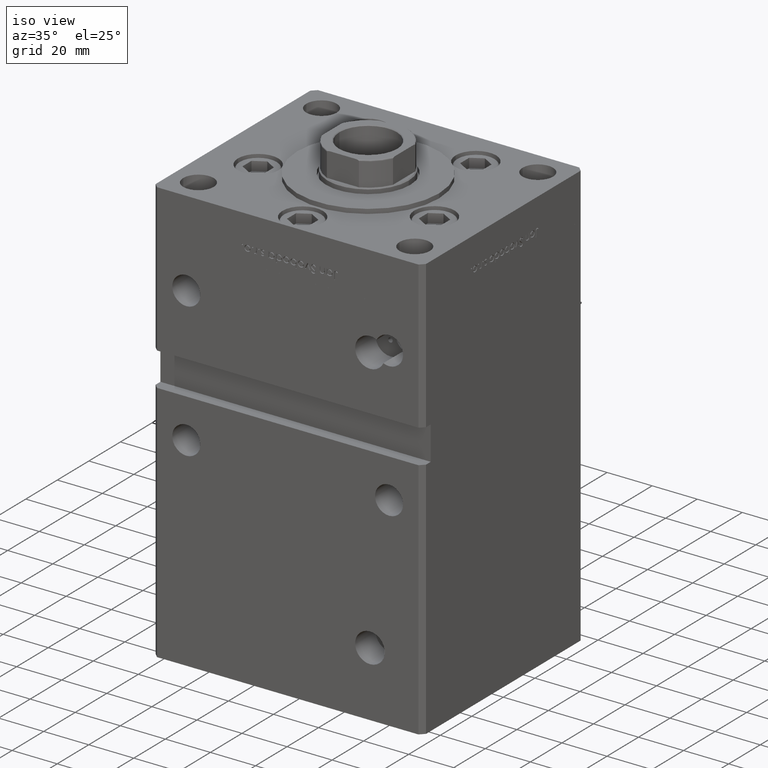
[diagram: clean part render]
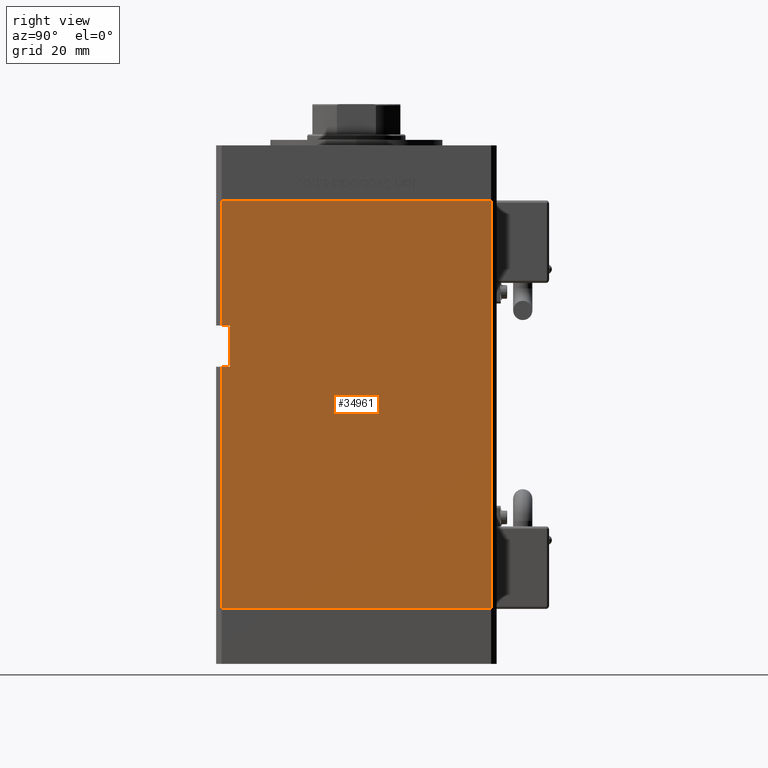
[diagram: tour spotlight — one face highlighted and labeled with its STEP entity id]
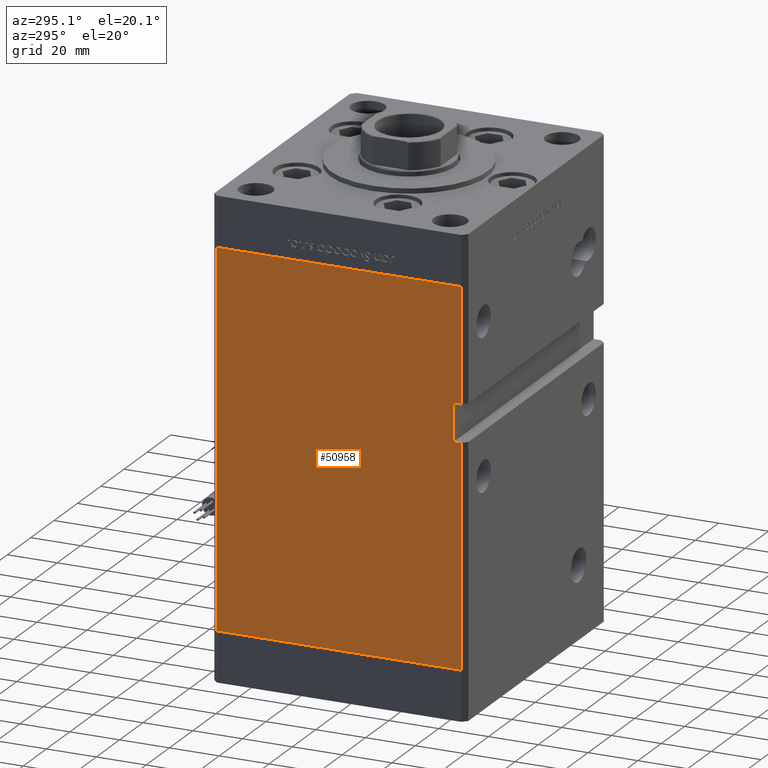
[diagram: tour spotlight — one face highlighted and labeled with its STEP entity id]
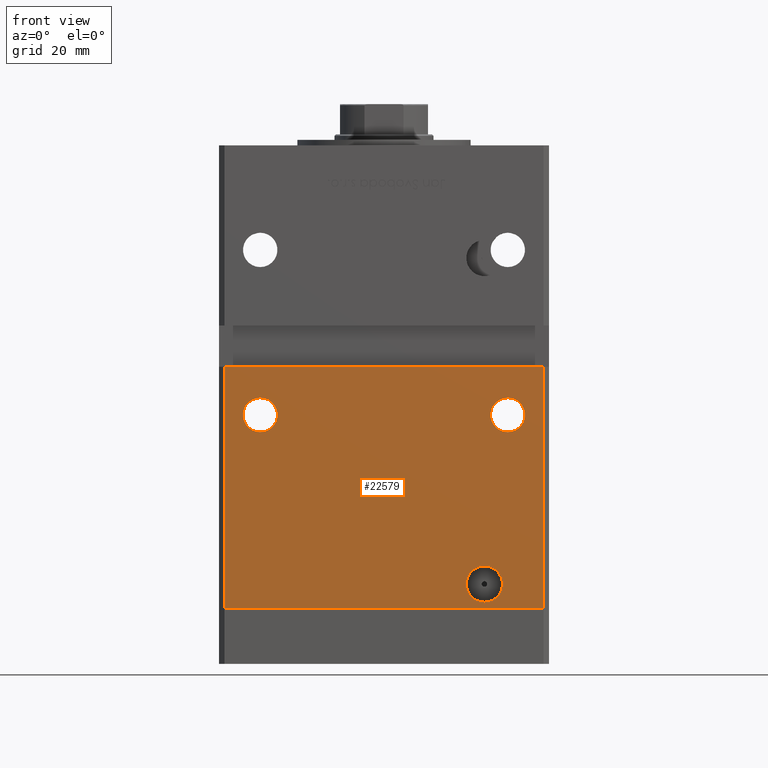
[diagram: tour spotlight — one face highlighted and labeled with its STEP entity id]
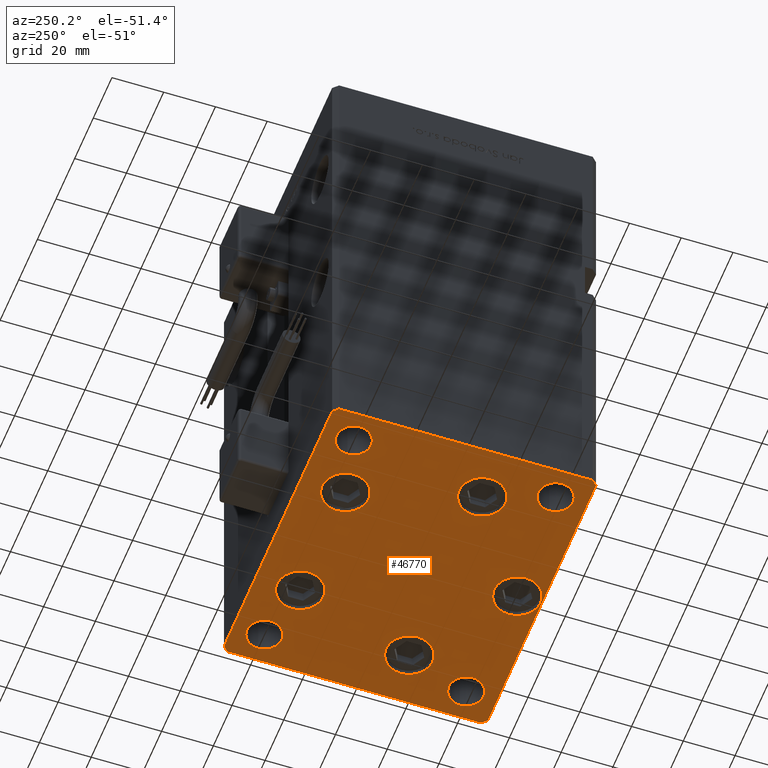
[diagram: tour spotlight — one face highlighted and labeled with its STEP entity id]
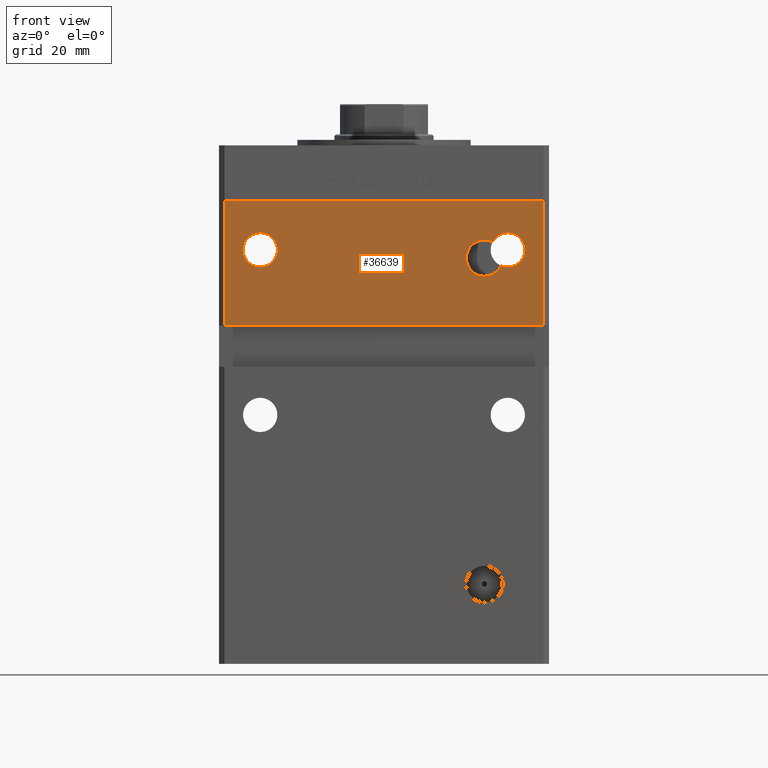
[diagram: tour spotlight — one face highlighted and labeled with its STEP entity id]
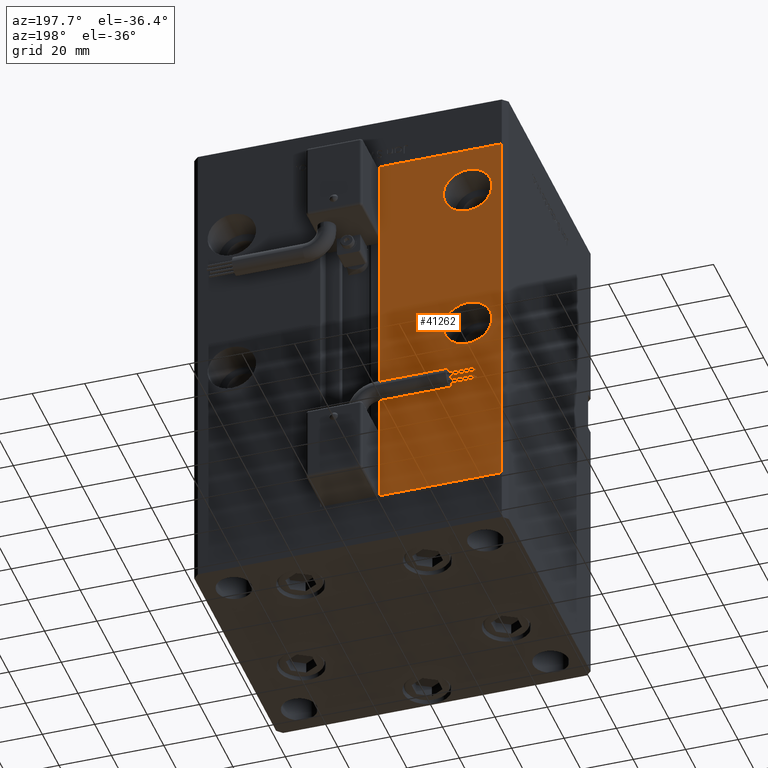
[diagram: tour spotlight — one face highlighted and labeled with its STEP entity id]
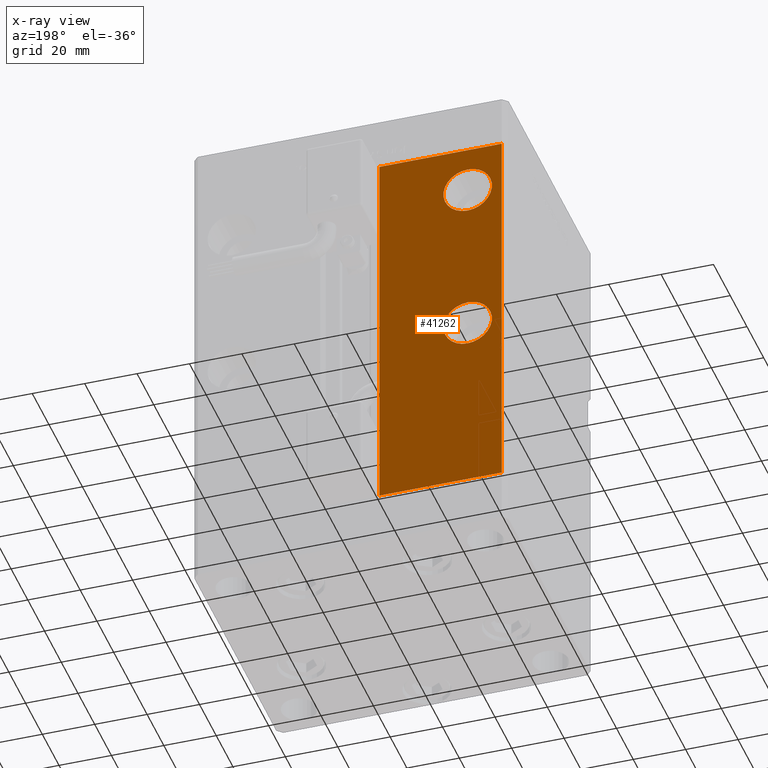
[diagram: x-ray of the same camera — body ghosted, this tour face saturated]
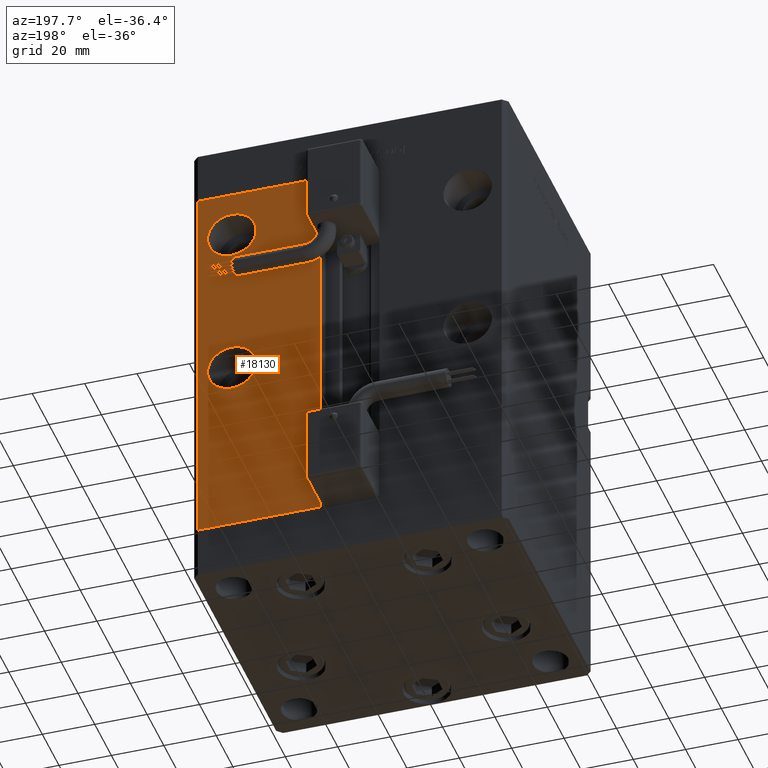
[diagram: tour spotlight — one face highlighted and labeled with its STEP entity id]
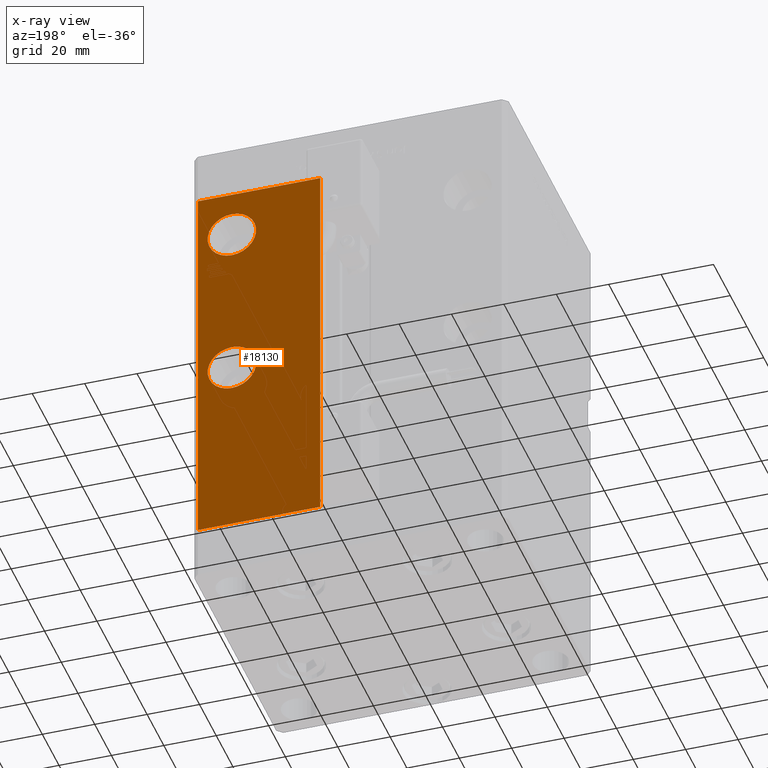
[diagram: x-ray of the same camera — body ghosted, this tour face saturated]
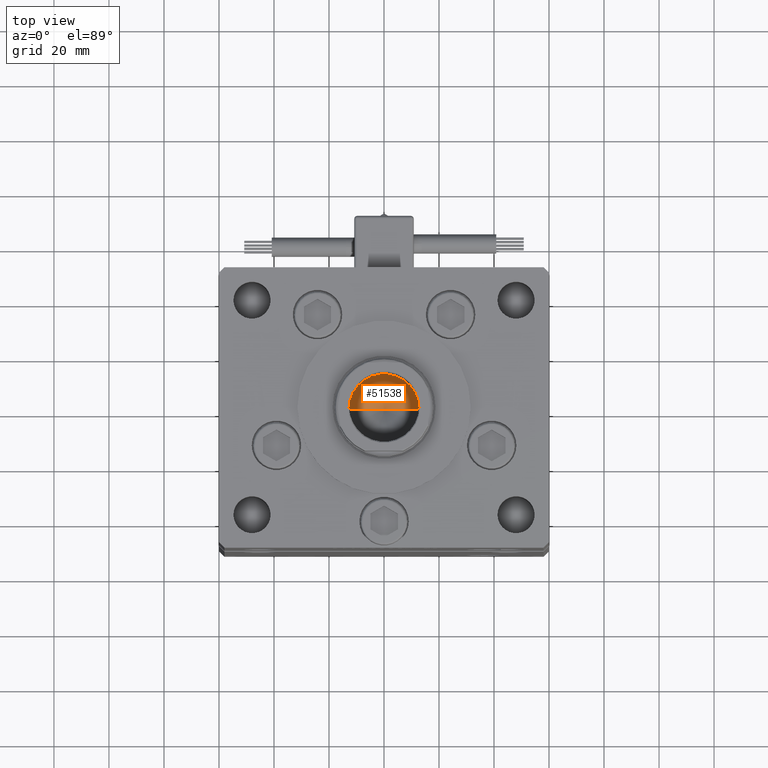
[diagram: tour spotlight — one face highlighted and labeled with its STEP entity id]
A machine part: a face-by-face anatomy tour. The part has 1419 B-rep faces; the first image is the clean iso view, then the 8 largest visible faces are spotlighted one at a time (largest first), each with its STEP entity span.

Face 1 — right view, entity #34961. In plain terms, the highlighted planar face has unit normal (1, -0, 0).
Definition (entity closure, byte-faithful):
#170 = ORIENTED_EDGE ( 'NONE', *, *, #10119, .T. ) ;
#558 = CARTESIAN_POINT ( 'NONE',  ( 60.00000000000001421, 49.00000000000000000, 148.5000000000000000 ) ) ;
#848 = VERTEX_POINT ( 'NONE', #38313 ) ;
#1473 = VERTEX_POINT ( 'NONE', #14707 ) ;
#2212 = LINE ( 'NONE', #31813, #8470 ) ;
#3312 = DIRECTION ( 'NONE',  ( -0.000000000000000000, -0.000000000000000000, 1.000000000000000000 ) ) ;
#3347 = DIRECTION ( 'NONE',  ( 2.832201593431522219E-16, 1.000000000000000000, 0.000000000000000000 ) ) ;
#5384 = CARTESIAN_POINT ( 'NONE',  ( 59.99999999999998579, -48.99999999999998579, 103.0000000000000000 ) ) ;
#5414 = DIRECTION ( 'NONE',  ( -0.000000000000000000, -1.000000000000000000, -0.000000000000000000 ) ) ;
#5539 = DIRECTION ( 'NONE',  ( -2.832201593431522219E-16, -1.000000000000000000, 0.000000000000000000 ) ) ;
#6603 = EDGE_CURVE ( 'NONE', #35618, #1473, #2212, .T. ) ;
#7144 = ORIENTED_EDGE ( 'NONE', *, *, #19761, .F. ) ;
#7256 = LINE ( 'NONE', #24611, #53337 ) ;
#8278 = ORIENTED_EDGE ( 'NONE', *, *, #31437, .T. ) ;
#8363 = VECTOR ( 'NONE', #29089, 1000.000000000000000 ) ;
#8470 = VECTOR ( 'NONE', #32657, 1000.000000000000000 ) ;
#8853 = ORIENTED_EDGE ( 'NONE', *, *, #44568, .F. ) ;
#9875 = CARTESIAN_POINT ( 'NONE',  ( 59.99999999999998579, -48.99999999999998579, 88.00000000000000000 ) ) ;
#10119 = EDGE_CURVE ( 'NONE', #1473, #46333, #45868, .T. ) ;
#11064 = LINE ( 'NONE', #27851, #44540 ) ;
#12144 = CARTESIAN_POINT ( 'NONE',  ( 59.99999999999998579, -46.00000000000000000, 88.00000000000000000 ) ) ;
#12793 = ORIENTED_EDGE ( 'NONE', *, *, #48555, .F. ) ;
#14652 = CARTESIAN_POINT ( 'NONE',  ( 59.99999999999998579, -48.99999999999998579, 148.5000000000000000 ) ) ;
#14707 = CARTESIAN_POINT ( 'NONE',  ( 59.99999999999998579, -48.99999999999998579, 148.5000000000000000 ) ) ;
#16876 = DIRECTION ( 'NONE',  ( -0.000000000000000000, -0.000000000000000000, -1.000000000000000000 ) ) ;
#17268 = VERTEX_POINT ( 'NONE', #12144 ) ;
#19761 = EDGE_CURVE ( 'NONE', #17268, #27439, #29475, .T. ) ;
#24611 = CARTESIAN_POINT ( 'NONE',  ( 60.00000000000001421, 49.00000000000000000, 148.5000000000000000 ) ) ;
#24977 = CARTESIAN_POINT ( 'NONE',  ( 60.00000000000001421, 49.00000000000000000, 148.5000000000000000 ) ) ;
#25491 = CARTESIAN_POINT ( 'NONE',  ( 59.99999999999998579, -45.99999999999999289, 103.0000000000000000 ) ) ;
#25930 = VECTOR ( 'NONE', #3312, 1000.000000000000000 ) ;
#27027 = LINE ( 'NONE', #44384, #56093 ) ;
#27439 = VERTEX_POINT ( 'NONE', #46213 ) ;
#27851 = CARTESIAN_POINT ( 'NONE',  ( 59.99999999999998579, -45.99999999999999289, 88.00000000000000000 ) ) ;
#28580 = LINE ( 'NONE', #14652, #52564 ) ;
#29089 = DIRECTION ( 'NONE',  ( -0.000000000000000000, -0.000000000000000000, -1.000000000000000000 ) ) ;
#29382 = EDGE_CURVE ( 'NONE', #848, #32466, #30848, .T. ) ;
#29475 = LINE ( 'NONE', #25491, #25930 ) ;
#29785 = VECTOR ( 'NONE', #5539, 1000.000000000000000 ) ;
#30848 = LINE ( 'NONE', #53313, #29785 ) ;
#31437 = EDGE_CURVE ( 'NONE', #38600, #32466, #28580, .T. ) ;
#31813 = CARTESIAN_POINT ( 'NONE',  ( 60.00000000000001421, 49.00000000000000000, 148.5000000000000000 ) ) ;
#32466 = VERTEX_POINT ( 'NONE', #43924 ) ;
#32657 = DIRECTION ( 'NONE',  ( -2.832201593431522219E-16, -1.000000000000000000, 0.000000000000000000 ) ) ;
#34961 = ADVANCED_FACE ( 'NONE', ( #46312 ), #42331, .T. ) ;
#35618 = VERTEX_POINT ( 'NONE', #558 ) ;
#35766 = EDGE_CURVE ( 'NONE', #17268, #38600, #11064, .T. ) ;
#37153 = AXIS2_PLACEMENT_3D ( 'NONE', #24977, #42605, #3347 ) ;
#38313 = CARTESIAN_POINT ( 'NONE',  ( 60.00000000000001421, 49.00000000000000000, 0.000000000000000000 ) ) ;
#38600 = VERTEX_POINT ( 'NONE', #9875 ) ;
#41285 = ORIENTED_EDGE ( 'NONE', *, *, #35766, .T. ) ;
#42331 = PLANE ( 'NONE',  #37153 ) ;
#42605 = DIRECTION ( 'NONE',  ( 1.000000000000000000, -2.832201593431522219E-16, 0.000000000000000000 ) ) ;
#42720 = CARTESIAN_POINT ( 'NONE',  ( 59.99999999999998579, -48.99999999999998579, 148.5000000000000000 ) ) ;
#43924 = CARTESIAN_POINT ( 'NONE',  ( 59.99999999999998579, -48.99999999999998579, 0.000000000000000000 ) ) ;
#43953 = ORIENTED_EDGE ( 'NONE', *, *, #29382, .F. ) ;
#44384 = CARTESIAN_POINT ( 'NONE',  ( 59.99999999999998579, -45.99999999999999289, 103.0000000000000000 ) ) ;
#44540 = VECTOR ( 'NONE', #44650, 1000.000000000000000 ) ;
#44568 = EDGE_CURVE ( 'NONE', #27439, #46333, #27027, .T. ) ;
#44650 = DIRECTION ( 'NONE',  ( -0.000000000000000000, -1.000000000000000000, -0.000000000000000000 ) ) ;
#45004 = ORIENTED_EDGE ( 'NONE', *, *, #6603, .T. ) ;
#45868 = LINE ( 'NONE', #42720, #8363 ) ;
#46038 = EDGE_LOOP ( 'NONE', ( #41285, #8278, #43953, #12793, #45004, #170, #8853, #7144 ) ) ;
#46213 = CARTESIAN_POINT ( 'NONE',  ( 59.99999999999998579, -45.99999999999999289, 103.0000000000000000 ) ) ;
#46312 = FACE_OUTER_BOUND ( 'NONE', #46038, .T. ) ;
#46333 = VERTEX_POINT ( 'NONE', #5384 ) ;
#48555 = EDGE_CURVE ( 'NONE', #35618, #848, #7256, .T. ) ;
#49915 = DIRECTION ( 'NONE',  ( -0.000000000000000000, -0.000000000000000000, -1.000000000000000000 ) ) ;
#52564 = VECTOR ( 'NONE', #49915, 1000.000000000000000 ) ;
#53313 = CARTESIAN_POINT ( 'NONE',  ( 60.00000000000001421, 49.00000000000000000, 0.000000000000000000 ) ) ;
#53337 = VECTOR ( 'NONE', #16876, 1000.000000000000000 ) ;
#56093 = VECTOR ( 'NONE', #5414, 1000.000000000000000 ) ;

Face 2 — auxiliary view, entity #50958. In plain terms, the highlighted planar face has unit normal (1, 0, 0).
Definition (entity closure, byte-faithful):
#799 = VERTEX_POINT ( 'NONE', #38030 ) ;
#1353 = CARTESIAN_POINT ( 'NONE',  ( -59.99999999999998579, -45.99999999999999289, 88.00000000000000000 ) ) ;
#1560 = VECTOR ( 'NONE', #35721, 1000.000000000000000 ) ;
#2618 = LINE ( 'NONE', #19970, #4914 ) ;
#2642 = DIRECTION ( 'NONE',  ( -0.000000000000000000, -0.000000000000000000, -1.000000000000000000 ) ) ;
#2658 = VERTEX_POINT ( 'NONE', #46480 ) ;
#2900 = DIRECTION ( 'NONE',  ( 0.000000000000000000, 0.000000000000000000, -1.000000000000000000 ) ) ;
#3109 = LINE ( 'NONE', #24192, #10470 ) ;
#3211 = VERTEX_POINT ( 'NONE', #1353 ) ;
#3261 = CARTESIAN_POINT ( 'NONE',  ( -60.00000000000001421, 49.00000000000000000, 148.5000000000000000 ) ) ;
#4914 = VECTOR ( 'NONE', #2900, 1000.000000000000000 ) ;
#5112 = EDGE_CURVE ( 'NONE', #9732, #2658, #40362, .T. ) ;
#5687 = ORIENTED_EDGE ( 'NONE', *, *, #32912, .F. ) ;
#6947 = EDGE_CURVE ( 'NONE', #53612, #18038, #30336, .T. ) ;
#8199 = ORIENTED_EDGE ( 'NONE', *, *, #11018, .T. ) ;
#8352 = CARTESIAN_POINT ( 'NONE',  ( -59.99999999999998579, -45.99999999999999289, 103.0000000000000000 ) ) ;
#8992 = LINE ( 'NONE', #26346, #25008 ) ;
#9722 = CARTESIAN_POINT ( 'NONE',  ( -59.99999999999998579, -45.99999999999999289, 88.00000000000000000 ) ) ;
#9732 = VERTEX_POINT ( 'NONE', #53626 ) ;
#10470 = VECTOR ( 'NONE', #29292, 1000.000000000000000 ) ;
#11018 = EDGE_CURVE ( 'NONE', #53612, #26106, #25100, .T. ) ;
#11529 = DIRECTION ( 'NONE',  ( -2.832201593431522219E-16, 1.000000000000000000, 0.000000000000000000 ) ) ;
#12635 = VECTOR ( 'NONE', #18249, 1000.000000000000000 ) ;
#13239 = CARTESIAN_POINT ( 'NONE',  ( -59.99999999999998579, -45.99999999999999289, 103.0000000000000000 ) ) ;
#14547 = CARTESIAN_POINT ( 'NONE',  ( -60.00000000000001421, 49.00000000000000000, 0.000000000000000000 ) ) ;
#15060 = VECTOR ( 'NONE', #43146, 1000.000000000000000 ) ;
#15656 = EDGE_CURVE ( 'NONE', #21025, #3211, #2618, .T. ) ;
#15960 = ORIENTED_EDGE ( 'NONE', *, *, #48335, .T. ) ;
#17494 = CARTESIAN_POINT ( 'NONE',  ( -59.99999999999998579, -48.99999999999998579, 148.5000000000000000 ) ) ;
#18038 = VERTEX_POINT ( 'NONE', #17494 ) ;
#18103 = CARTESIAN_POINT ( 'NONE',  ( -60.00000000000001421, 49.00000000000000000, 148.5000000000000000 ) ) ;
#18249 = DIRECTION ( 'NONE',  ( -0.000000000000000000, -1.000000000000000000, -0.000000000000000000 ) ) ;
#18863 = ORIENTED_EDGE ( 'NONE', *, *, #6947, .F. ) ;
#19300 = DIRECTION ( 'NONE',  ( -0.000000000000000000, -0.000000000000000000, -1.000000000000000000 ) ) ;
#19970 = CARTESIAN_POINT ( 'NONE',  ( -59.99999999999998579, -45.99999999999999289, 103.0000000000000000 ) ) ;
#20554 = CARTESIAN_POINT ( 'NONE',  ( -60.00000000000001421, 49.00000000000000000, 148.5000000000000000 ) ) ;
#21025 = VERTEX_POINT ( 'NONE', #8352 ) ;
#22300 = EDGE_CURVE ( 'NONE', #26106, #2658, #3109, .T. ) ;
#22761 = EDGE_CURVE ( 'NONE', #18038, #799, #8992, .T. ) ;
#24192 = CARTESIAN_POINT ( 'NONE',  ( -60.00000000000001421, 49.00000000000000000, 0.000000000000000000 ) ) ;
#24858 = ORIENTED_EDGE ( 'NONE', *, *, #22300, .T. ) ;
#25008 = VECTOR ( 'NONE', #55657, 1000.000000000000000 ) ;
#25100 = LINE ( 'NONE', #20554, #33835 ) ;
#26106 = VERTEX_POINT ( 'NONE', #14547 ) ;
#26346 = CARTESIAN_POINT ( 'NONE',  ( -59.99999999999998579, -48.99999999999998579, 148.5000000000000000 ) ) ;
#27438 = CARTESIAN_POINT ( 'NONE',  ( -60.00000000000001421, 49.00000000000000000, 148.5000000000000000 ) ) ;
#29292 = DIRECTION ( 'NONE',  ( 2.832201593431522219E-16, -1.000000000000000000, 0.000000000000000000 ) ) ;
#30336 = LINE ( 'NONE', #18103, #15060 ) ;
#32912 = EDGE_CURVE ( 'NONE', #3211, #9732, #53518, .T. ) ;
#33146 = DIRECTION ( 'NONE',  ( 1.000000000000000000, 2.832201593431522219E-16, -0.000000000000000000 ) ) ;
#33707 = FACE_OUTER_BOUND ( 'NONE', #43254, .T. ) ;
#33835 = VECTOR ( 'NONE', #2642, 1000.000000000000000 ) ;
#35721 = DIRECTION ( 'NONE',  ( -0.000000000000000000, -1.000000000000000000, -0.000000000000000000 ) ) ;
#36375 = CARTESIAN_POINT ( 'NONE',  ( -59.99999999999998579, -48.99999999999998579, 148.5000000000000000 ) ) ;
#36636 = ORIENTED_EDGE ( 'NONE', *, *, #22761, .F. ) ;
#38030 = CARTESIAN_POINT ( 'NONE',  ( -59.99999999999998579, -48.99999999999998579, 103.0000000000000000 ) ) ;
#39709 = LINE ( 'NONE', #13239, #1560 ) ;
#40362 = LINE ( 'NONE', #36375, #50875 ) ;
#42796 = PLANE ( 'NONE',  #55236 ) ;
#43146 = DIRECTION ( 'NONE',  ( 2.832201593431522219E-16, -1.000000000000000000, 0.000000000000000000 ) ) ;
#43254 = EDGE_LOOP ( 'NONE', ( #45738, #5687, #46610, #15960, #36636, #18863, #8199, #24858 ) ) ;
#45738 = ORIENTED_EDGE ( 'NONE', *, *, #5112, .F. ) ;
#46480 = CARTESIAN_POINT ( 'NONE',  ( -59.99999999999998579, -48.99999999999998579, 0.000000000000000000 ) ) ;
#46610 = ORIENTED_EDGE ( 'NONE', *, *, #15656, .F. ) ;
#48335 = EDGE_CURVE ( 'NONE', #21025, #799, #39709, .T. ) ;
#50875 = VECTOR ( 'NONE', #19300, 1000.000000000000000 ) ;
#50958 = ADVANCED_FACE ( 'NONE', ( #33707 ), #42796, .F. ) ;
#53518 = LINE ( 'NONE', #9722, #12635 ) ;
#53612 = VERTEX_POINT ( 'NONE', #27438 ) ;
#53626 = CARTESIAN_POINT ( 'NONE',  ( -59.99999999999998579, -48.99999999999998579, 88.00000000000000000 ) ) ;
#55236 = AXIS2_PLACEMENT_3D ( 'NONE', #3261, #33146, #11529 ) ;
#55657 = DIRECTION ( 'NONE',  ( -0.000000000000000000, -0.000000000000000000, -1.000000000000000000 ) ) ;

Face 3 — front view, entity #22579. In plain terms, the highlighted planar face has unit normal (0, 1, 0).
Definition (entity closure, byte-faithful):
#471 = CIRCLE ( 'NONE', #16822, 6.250000000000005329 ) ;
#1119 = CARTESIAN_POINT ( 'NONE',  ( -57.99999999999997868, -50.99999999999999289, 0.000000000000000000 ) ) ;
#1768 = CARTESIAN_POINT ( 'NONE',  ( 36.49999999999998579, -50.99999999999999289, 15.58000000000000362 ) ) ;
#2101 = DIRECTION ( 'NONE',  ( 0.000000000000000000, -1.000000000000000000, 0.000000000000000000 ) ) ;
#2596 = EDGE_CURVE ( 'NONE', #21559, #52050, #53331, .T. ) ;
#2635 = DIRECTION ( 'NONE',  ( 0.000000000000000000, 0.000000000000000000, 1.000000000000000000 ) ) ;
#3185 = EDGE_CURVE ( 'NONE', #30094, #13533, #52781, .T. ) ;
#3505 = EDGE_LOOP ( 'NONE', ( #49818, #36410, #54658, #20291 ) ) ;
#3753 = CARTESIAN_POINT ( 'NONE',  ( 45.00000000000000000, -50.99999999999999289, 76.75000000000001421 ) ) ;
#3809 = EDGE_CURVE ( 'NONE', #21559, #7120, #14283, .T. ) ;
#4398 = DIRECTION ( 'NONE',  ( 0.000000000000000000, 1.000000000000000000, 0.000000000000000000 ) ) ;
#4591 = EDGE_LOOP ( 'NONE', ( #6753, #51452 ) ) ;
#6753 = ORIENTED_EDGE ( 'NONE', *, *, #27642, .T. ) ;
#6872 = DIRECTION ( 'NONE',  ( -0.000000000000000000, -0.000000000000000000, -1.000000000000000000 ) ) ;
#7120 = VERTEX_POINT ( 'NONE', #20555 ) ;
#7222 = CIRCLE ( 'NONE', #31738, 6.250000000000005329 ) ;
#9022 = ORIENTED_EDGE ( 'NONE', *, *, #23166, .T. ) ;
#9172 = AXIS2_PLACEMENT_3D ( 'NONE', #23534, #28082, #40333 ) ;
#9739 = CIRCLE ( 'NONE', #25162, 6.250000000000005329 ) ;
#10743 = FACE_OUTER_BOUND ( 'NONE', #3505, .T. ) ;
#12639 = CARTESIAN_POINT ( 'NONE',  ( 45.00000000000000000, -50.99999999999999289, 70.50000000000000000 ) ) ;
#13479 = VERTEX_POINT ( 'NONE', #3753 ) ;
#13533 = VERTEX_POINT ( 'NONE', #17954 ) ;
#13888 = PLANE ( 'NONE',  #24129 ) ;
#14282 = AXIS2_PLACEMENT_3D ( 'NONE', #41075, #2101, #42406 ) ;
#14283 = LINE ( 'NONE', #27365, #30084 ) ;
#15218 = CIRCLE ( 'NONE', #14282, 6.579999999999994742 ) ;
#15497 = CARTESIAN_POINT ( 'NONE',  ( 57.99999999999997868, -50.99999999999999289, 0.000000000000000000 ) ) ;
#16738 = CARTESIAN_POINT ( 'NONE',  ( -57.99999999999997868, -50.99999999999999289, 88.00000000000000000 ) ) ;
#16822 = AXIS2_PLACEMENT_3D ( 'NONE', #23983, #19709, #2635 ) ;
#17954 = CARTESIAN_POINT ( 'NONE',  ( -45.00000000000000000, -50.99999999999999289, 76.75000000000001421 ) ) ;
#18627 = DIRECTION ( 'NONE',  ( 1.000000000000000000, 0.000000000000000000, 0.000000000000000000 ) ) ;
#19643 = VECTOR ( 'NONE', #21450, 1000.000000000000000 ) ;
#19709 = DIRECTION ( 'NONE',  ( 0.000000000000000000, 1.000000000000000000, 0.000000000000000000 ) ) ;
#20291 = ORIENTED_EDGE ( 'NONE', *, *, #52573, .T. ) ;
#20555 = CARTESIAN_POINT ( 'NONE',  ( -57.99999999999997868, -50.99999999999999289, 0.000000000000000000 ) ) ;
#21098 = VERTEX_POINT ( 'NONE', #1768 ) ;
#21439 = DIRECTION ( 'NONE',  ( 0.000000000000000000, 1.000000000000000000, 0.000000000000000000 ) ) ;
#21450 = DIRECTION ( 'NONE',  ( -0.000000000000000000, -0.000000000000000000, -1.000000000000000000 ) ) ;
#21559 = VERTEX_POINT ( 'NONE', #16738 ) ;
#22579 = ADVANCED_FACE ( 'NONE', ( #32370, #49713, #23263, #10743 ), #13888, .F. ) ;
#23166 = EDGE_CURVE ( 'NONE', #23687, #13479, #471, .T. ) ;
#23263 = FACE_BOUND ( 'NONE', #55422, .T. ) ;
#23534 = CARTESIAN_POINT ( 'NONE',  ( -45.00000000000000000, -50.99999999999999289, 70.50000000000000000 ) ) ;
#23687 = VERTEX_POINT ( 'NONE', #47666 ) ;
#23983 = CARTESIAN_POINT ( 'NONE',  ( 45.00000000000000000, -50.99999999999999289, 70.50000000000000000 ) ) ;
#24129 = AXIS2_PLACEMENT_3D ( 'NONE', #36081, #35796, #28093 ) ;
#25162 = AXIS2_PLACEMENT_3D ( 'NONE', #55574, #21439, #26261 ) ;
#25737 = DIRECTION ( 'NONE',  ( 0.000000000000000000, 0.000000000000000000, 1.000000000000000000 ) ) ;
#26261 = DIRECTION ( 'NONE',  ( 0.000000000000000000, 0.000000000000000000, 1.000000000000000000 ) ) ;
#27365 = CARTESIAN_POINT ( 'NONE',  ( -57.99999999999997868, -50.99999999999999289, 148.5000000000000000 ) ) ;
#27642 = EDGE_CURVE ( 'NONE', #13533, #30094, #9739, .T. ) ;
#28082 = DIRECTION ( 'NONE',  ( 0.000000000000000000, 1.000000000000000000, 0.000000000000000000 ) ) ;
#28093 = DIRECTION ( 'NONE',  ( 0.000000000000000000, -0.000000000000000000, 1.000000000000000000 ) ) ;
#28271 = EDGE_LOOP ( 'NONE', ( #36293, #9022 ) ) ;
#29423 = CARTESIAN_POINT ( 'NONE',  ( 57.99999999999997868, -50.99999999999999289, 148.5000000000000000 ) ) ;
#29698 = AXIS2_PLACEMENT_3D ( 'NONE', #37099, #32825, #53596 ) ;
#30084 = VECTOR ( 'NONE', #6872, 1000.000000000000000 ) ;
#30094 = VERTEX_POINT ( 'NONE', #38634 ) ;
#31475 = VERTEX_POINT ( 'NONE', #15497 ) ;
#31738 = AXIS2_PLACEMENT_3D ( 'NONE', #12639, #4398, #25737 ) ;
#32370 = FACE_BOUND ( 'NONE', #4591, .T. ) ;
#32825 = DIRECTION ( 'NONE',  ( 0.000000000000000000, -1.000000000000000000, 0.000000000000000000 ) ) ;
#33192 = VERTEX_POINT ( 'NONE', #39521 ) ;
#34252 = LINE ( 'NONE', #29423, #19643 ) ;
#35796 = DIRECTION ( 'NONE',  ( 0.000000000000000000, 1.000000000000000000, 0.000000000000000000 ) ) ;
#36081 = CARTESIAN_POINT ( 'NONE',  ( -57.99999999999997868, -50.99999999999999289, 148.5000000000000000 ) ) ;
#36274 = CARTESIAN_POINT ( 'NONE',  ( -59.99999999999998579, -50.99999999999999289, 88.00000000000000000 ) ) ;
#36293 = ORIENTED_EDGE ( 'NONE', *, *, #53193, .T. ) ;
#36410 = ORIENTED_EDGE ( 'NONE', *, *, #2596, .F. ) ;
#37099 = CARTESIAN_POINT ( 'NONE',  ( 36.49999999999998579, -50.99999999999999289, 9.000000000000007105 ) ) ;
#38634 = CARTESIAN_POINT ( 'NONE',  ( -45.00000000000000000, -50.99999999999999289, 64.25000000000000000 ) ) ;
#39521 = CARTESIAN_POINT ( 'NONE',  ( 36.49999999999998579, -50.99999999999999289, 2.420000000000013252 ) ) ;
#40333 = DIRECTION ( 'NONE',  ( 0.000000000000000000, 0.000000000000000000, 1.000000000000000000 ) ) ;
#41075 = CARTESIAN_POINT ( 'NONE',  ( 36.49999999999998579, -50.99999999999999289, 9.000000000000007105 ) ) ;
#41218 = EDGE_CURVE ( 'NONE', #52050, #31475, #34252, .T. ) ;
#42406 = DIRECTION ( 'NONE',  ( 0.000000000000000000, 0.000000000000000000, -1.000000000000000000 ) ) ;
#43078 = EDGE_CURVE ( 'NONE', #21098, #33192, #49689, .T. ) ;
#44916 = DIRECTION ( 'NONE',  ( 1.000000000000000000, 0.000000000000000000, 0.000000000000000000 ) ) ;
#47666 = CARTESIAN_POINT ( 'NONE',  ( 45.00000000000000000, -50.99999999999999289, 64.25000000000000000 ) ) ;
#47720 = EDGE_CURVE ( 'NONE', #33192, #21098, #15218, .T. ) ;
#48951 = VECTOR ( 'NONE', #44916, 1000.000000000000000 ) ;
#49142 = ORIENTED_EDGE ( 'NONE', *, *, #47720, .F. ) ;
#49451 = LINE ( 'NONE', #1119, #48951 ) ;
#49689 = CIRCLE ( 'NONE', #29698, 6.579999999999994742 ) ;
#49713 = FACE_BOUND ( 'NONE', #28271, .T. ) ;
#49818 = ORIENTED_EDGE ( 'NONE', *, *, #41218, .F. ) ;
#50440 = CARTESIAN_POINT ( 'NONE',  ( 57.99999999999997868, -50.99999999999999289, 88.00000000000000000 ) ) ;
#51452 = ORIENTED_EDGE ( 'NONE', *, *, #3185, .T. ) ;
#51841 = VECTOR ( 'NONE', #18627, 1000.000000000000000 ) ;
#52050 = VERTEX_POINT ( 'NONE', #50440 ) ;
#52573 = EDGE_CURVE ( 'NONE', #7120, #31475, #49451, .T. ) ;
#52781 = CIRCLE ( 'NONE', #9172, 6.250000000000005329 ) ;
#53193 = EDGE_CURVE ( 'NONE', #13479, #23687, #7222, .T. ) ;
#53331 = LINE ( 'NONE', #36274, #51841 ) ;
#53596 = DIRECTION ( 'NONE',  ( 0.000000000000000000, 0.000000000000000000, -1.000000000000000000 ) ) ;
#53731 = ORIENTED_EDGE ( 'NONE', *, *, #43078, .F. ) ;
#54658 = ORIENTED_EDGE ( 'NONE', *, *, #3809, .T. ) ;
#55422 = EDGE_LOOP ( 'NONE', ( #49142, #53731 ) ) ;
#55574 = CARTESIAN_POINT ( 'NONE',  ( -45.00000000000000000, -50.99999999999999289, 70.50000000000000000 ) ) ;

Face 4 — auxiliary view, entity #46770. In plain terms, the highlighted planar face has unit normal (0, 0, -1).
Definition (entity closure, byte-faithful):
#148 = EDGE_CURVE ( 'NONE', #33207, #13438, #28140, .T. ) ;
#307 = CARTESIAN_POINT ( 'NONE',  ( 48.12657522565562829, -13.83333333333332682, 0.000000000000000000 ) ) ;
#330 = LINE ( 'NONE', #12845, #35310 ) ;
#719 = AXIS2_PLACEMENT_3D ( 'NONE', #2423, #2979, #24057 ) ;
#1919 = VERTEX_POINT ( 'NONE', #35846 ) ;
#1938 = VECTOR ( 'NONE', #23007, 1000.000000000000000 ) ;
#2423 = CARTESIAN_POINT ( 'NONE',  ( 39.12657522565562829, -13.83333333333332860, 0.000000000000000000 ) ) ;
#2654 = FACE_BOUND ( 'NONE', #31413, .T. ) ;
#2656 = VERTEX_POINT ( 'NONE', #33406 ) ;
#2773 = CARTESIAN_POINT ( 'NONE',  ( -24.19288941894912170, 33.71875000000000000, 0.000000000000000000 ) ) ;
#2979 = DIRECTION ( 'NONE',  ( 0.000000000000000000, -0.000000000000000000, -1.000000000000000000 ) ) ;
#3123 = EDGE_CURVE ( 'NONE', #36111, #22119, #55459, .T. ) ;
#3210 = FACE_BOUND ( 'NONE', #15516, .T. ) ;
#3613 = AXIS2_PLACEMENT_3D ( 'NONE', #22629, #5838, #31728 ) ;
#3660 = ORIENTED_EDGE ( 'NONE', *, *, #18822, .T. ) ;
#4141 = ORIENTED_EDGE ( 'NONE', *, *, #50573, .T. ) ;
#4243 = AXIS2_PLACEMENT_3D ( 'NONE', #19727, #15748, #15466 ) ;
#4259 = ORIENTED_EDGE ( 'NONE', *, *, #28847, .T. ) ;
#4267 = EDGE_CURVE ( 'NONE', #12945, #43299, #51600, .T. ) ;
#4451 = AXIS2_PLACEMENT_3D ( 'NONE', #29343, #15711, #46131 ) ;
#4513 = ORIENTED_EDGE ( 'NONE', *, *, #23606, .T. ) ;
#4634 = CARTESIAN_POINT ( 'NONE',  ( -48.00000000000000000, -39.00000000000000000, 0.000000000000000000 ) ) ;
#4704 = DIRECTION ( 'NONE',  ( -0.000000000000000000, 0.000000000000000000, 1.000000000000000000 ) ) ;
#5110 = EDGE_CURVE ( 'NONE', #25880, #12945, #44637, .T. ) ;
#5357 = DIRECTION ( 'NONE',  ( 1.000000000000000000, 0.000000000000000000, 0.000000000000000000 ) ) ;
#5665 = CARTESIAN_POINT ( 'NONE',  ( 60.00000000000001421, -48.99999999999999289, 0.000000000000000000 ) ) ;
#5705 = VERTEX_POINT ( 'NONE', #35553 ) ;
#5756 = ORIENTED_EDGE ( 'NONE', *, *, #44165, .T. ) ;
#5838 = DIRECTION ( 'NONE',  ( 0.000000000000000000, -0.000000000000000000, -1.000000000000000000 ) ) ;
#5897 = CARTESIAN_POINT ( 'NONE',  ( -48.00000000000000000, -39.00000000000000000, 0.000000000000000000 ) ) ;
#6128 = VERTEX_POINT ( 'NONE', #55338 ) ;
#6263 = EDGE_CURVE ( 'NONE', #39107, #10219, #35716, .T. ) ;
#6625 = CARTESIAN_POINT ( 'NONE',  ( 48.00000000000000000, -38.99999999999999289, 0.000000000000000000 ) ) ;
#6827 = AXIS2_PLACEMENT_3D ( 'NONE', #32007, #14370, #53615 ) ;
#6871 = EDGE_CURVE ( 'NONE', #5705, #55418, #39585, .T. ) ;
#7172 = DIRECTION ( 'NONE',  ( 1.000000000000000000, 0.000000000000000000, 0.000000000000000000 ) ) ;
#7525 = DIRECTION ( 'NONE',  ( 0.7071067811865474617, 0.7071067811865474617, 0.000000000000000000 ) ) ;
#7762 = FACE_BOUND ( 'NONE', #9742, .T. ) ;
#8571 = CARTESIAN_POINT ( 'NONE',  ( -41.25000000000000000, 39.00000000000000000, 0.000000000000000000 ) ) ;
#8809 = EDGE_LOOP ( 'NONE', ( #36405, #13105 ) ) ;
#9135 = CIRCLE ( 'NONE', #35503, 6.749999999999999112 ) ;
#9369 = VERTEX_POINT ( 'NONE', #41750 ) ;
#9616 = CARTESIAN_POINT ( 'NONE',  ( 24.19288941894911460, 33.71875000000000711, 0.000000000000000000 ) ) ;
#9742 = EDGE_LOOP ( 'NONE', ( #40396, #44220 ) ) ;
#10143 = LINE ( 'NONE', #45115, #33448 ) ;
#10219 = VERTEX_POINT ( 'NONE', #8571 ) ;
#10826 = CIRCLE ( 'NONE', #21707, 6.749999999999999112 ) ;
#10909 = FACE_BOUND ( 'NONE', #47509, .T. ) ;
#11048 = CARTESIAN_POINT ( 'NONE',  ( -41.25000000000000000, -39.00000000000000000, 0.000000000000000000 ) ) ;
#11572 = VERTEX_POINT ( 'NONE', #11048 ) ;
#11585 = DIRECTION ( 'NONE',  ( 1.000000000000000000, 0.000000000000000000, 0.000000000000000000 ) ) ;
#11674 = VECTOR ( 'NONE', #55175, 1000.000000000000114 ) ;
#12136 = DIRECTION ( 'NONE',  ( 0.000000000000000000, -0.000000000000000000, -1.000000000000000000 ) ) ;
#12246 = CIRCLE ( 'NONE', #24971, 6.749999999999999112 ) ;
#12351 = DIRECTION ( 'NONE',  ( -0.7071067811865487940, 0.7071067811865463515, 0.000000000000000000 ) ) ;
#12845 = CARTESIAN_POINT ( 'NONE',  ( -60.00000000000000000, 48.99999999999995737, 0.000000000000000000 ) ) ;
#12945 = VERTEX_POINT ( 'NONE', #37420 ) ;
#13105 = ORIENTED_EDGE ( 'NONE', *, *, #6871, .T. ) ;
#13419 = CIRCLE ( 'NONE', #16151, 9.000000000000000000 ) ;
#13438 = VERTEX_POINT ( 'NONE', #50426 ) ;
#14000 = ORIENTED_EDGE ( 'NONE', *, *, #6263, .F. ) ;
#14142 = ORIENTED_EDGE ( 'NONE', *, *, #28477, .T. ) ;
#14370 = DIRECTION ( 'NONE',  ( 0.000000000000000000, -0.000000000000000000, -1.000000000000000000 ) ) ;
#14422 = CARTESIAN_POINT ( 'NONE',  ( -57.99999999999997868, -51.00000000000001421, 0.000000000000000000 ) ) ;
#15148 = DIRECTION ( 'NONE',  ( 1.000000000000000000, 0.000000000000000000, 0.000000000000000000 ) ) ;
#15466 = DIRECTION ( 'NONE',  ( 1.000000000000000000, 0.000000000000000000, 0.000000000000000000 ) ) ;
#15516 = EDGE_LOOP ( 'NONE', ( #52973, #14000 ) ) ;
#15667 = CARTESIAN_POINT ( 'NONE',  ( -57.99999999999999289, 50.99999999999997868, 0.000000000000000000 ) ) ;
#15711 = DIRECTION ( 'NONE',  ( 0.000000000000000000, -0.000000000000000000, -1.000000000000000000 ) ) ;
#15748 = DIRECTION ( 'NONE',  ( -0.000000000000000000, 0.000000000000000000, 1.000000000000000000 ) ) ;
#15758 = CARTESIAN_POINT ( 'NONE',  ( 57.99999999999993605, 51.00000000000000711, 0.000000000000000000 ) ) ;
#15915 = ORIENTED_EDGE ( 'NONE', *, *, #51519, .T. ) ;
#16111 = CIRCLE ( 'NONE', #27928, 6.749999999999999112 ) ;
#16151 = AXIS2_PLACEMENT_3D ( 'NONE', #2773, #50281, #11585 ) ;
#16301 = ORIENTED_EDGE ( 'NONE', *, *, #5110, .T. ) ;
#16635 = DIRECTION ( 'NONE',  ( 0.000000000000000000, -0.000000000000000000, -1.000000000000000000 ) ) ;
#17107 = DIRECTION ( 'NONE',  ( -1.000000000000000000, -2.392722035830079958E-16, 0.000000000000000000 ) ) ;
#17616 = ORIENTED_EDGE ( 'NONE', *, *, #3123, .T. ) ;
#17873 = CARTESIAN_POINT ( 'NONE',  ( -15.19288941894912170, 33.71875000000000000, 0.000000000000000000 ) ) ;
#18268 = EDGE_CURVE ( 'NONE', #34312, #54990, #22187, .T. ) ;
#18822 = EDGE_CURVE ( 'NONE', #53090, #27918, #24093, .T. ) ;
#18871 = CIRCLE ( 'NONE', #54282, 9.000000000000000000 ) ;
#19534 = DIRECTION ( 'NONE',  ( 0.000000000000000000, -0.000000000000000000, -1.000000000000000000 ) ) ;
#19569 = AXIS2_PLACEMENT_3D ( 'NONE', #52800, #43992, #21531 ) ;
#19727 = CARTESIAN_POINT ( 'NONE',  ( 0.000000000000000000, 0.000000000000000000, 0.000000000000000000 ) ) ;
#19925 = LINE ( 'NONE', #15667, #11674 ) ;
#20003 = FACE_BOUND ( 'NONE', #8809, .T. ) ;
#20111 = DIRECTION ( 'NONE',  ( 1.000000000000000000, 0.000000000000000000, 0.000000000000000000 ) ) ;
#20119 = DIRECTION ( 'NONE',  ( 1.000000000000000000, 0.000000000000000000, 0.000000000000000000 ) ) ;
#20718 = EDGE_CURVE ( 'NONE', #36598, #9369, #53232, .T. ) ;
#21531 = DIRECTION ( 'NONE',  ( 1.000000000000000000, 0.000000000000000000, 0.000000000000000000 ) ) ;
#21617 = CARTESIAN_POINT ( 'NONE',  ( 41.25000000000000000, -38.99999999999999289, 0.000000000000000000 ) ) ;
#21707 = AXIS2_PLACEMENT_3D ( 'NONE', #25076, #46684, #7172 ) ;
#21922 = EDGE_CURVE ( 'NONE', #13438, #33207, #12246, .T. ) ;
#22076 = DIRECTION ( 'NONE',  ( 1.000000000000000000, 0.000000000000000000, 0.000000000000000000 ) ) ;
#22119 = VERTEX_POINT ( 'NONE', #51232 ) ;
#22187 = LINE ( 'NONE', #23036, #22246 ) ;
#22246 = VECTOR ( 'NONE', #40388, 1000.000000000000000 ) ;
#22629 = CARTESIAN_POINT ( 'NONE',  ( 48.00000000000000000, -38.99999999999999289, 0.000000000000000000 ) ) ;
#22808 = VERTEX_POINT ( 'NONE', #35451 ) ;
#23007 = DIRECTION ( 'NONE',  ( -7.080503983578803823E-16, 1.000000000000000000, 0.000000000000000000 ) ) ;
#23036 = CARTESIAN_POINT ( 'NONE',  ( -57.99999999999997868, -51.00000000000001421, 0.000000000000000000 ) ) ;
#23239 = DIRECTION ( 'NONE',  ( 1.000000000000000000, 0.000000000000000000, 0.000000000000000000 ) ) ;
#23606 = EDGE_CURVE ( 'NONE', #22808, #6128, #49560, .T. ) ;
#23765 = VECTOR ( 'NONE', #12351, 1000.000000000000000 ) ;
#24057 = DIRECTION ( 'NONE',  ( 1.000000000000000000, 0.000000000000000000, 0.000000000000000000 ) ) ;
#24093 = CIRCLE ( 'NONE', #6827, 9.000000000000001776 ) ;
#24819 = ORIENTED_EDGE ( 'NONE', *, *, #31900, .T. ) ;
#24971 = AXIS2_PLACEMENT_3D ( 'NONE', #6625, #28238, #15148 ) ;
#25076 = CARTESIAN_POINT ( 'NONE',  ( 48.00000000000000000, 38.99999999999999289, 0.000000000000000000 ) ) ;
#25198 = AXIS2_PLACEMENT_3D ( 'NONE', #4634, #34512, #39899 ) ;
#25880 = VERTEX_POINT ( 'NONE', #50441 ) ;
#25952 = EDGE_LOOP ( 'NONE', ( #4513, #24819 ) ) ;
#26438 = EDGE_CURVE ( 'NONE', #54990, #25880, #54173, .T. ) ;
#26630 = CARTESIAN_POINT ( 'NONE',  ( 24.19288941894911460, 33.71875000000000711, 0.000000000000000000 ) ) ;
#26931 = CARTESIAN_POINT ( 'NONE',  ( -33.19288941894912170, 33.71875000000000000, 0.000000000000000000 ) ) ;
#27403 = EDGE_CURVE ( 'NONE', #10219, #39107, #16111, .T. ) ;
#27918 = VERTEX_POINT ( 'NONE', #307 ) ;
#27928 = AXIS2_PLACEMENT_3D ( 'NONE', #29151, #37681, #28309 ) ;
#28098 = EDGE_CURVE ( 'NONE', #55418, #5705, #18871, .T. ) ;
#28140 = CIRCLE ( 'NONE', #3613, 6.749999999999999112 ) ;
#28151 = EDGE_CURVE ( 'NONE', #49151, #33541, #13419, .T. ) ;
#28228 = EDGE_CURVE ( 'NONE', #22119, #36111, #28873, .T. ) ;
#28238 = DIRECTION ( 'NONE',  ( 0.000000000000000000, -0.000000000000000000, -1.000000000000000000 ) ) ;
#28295 = ORIENTED_EDGE ( 'NONE', *, *, #52109, .T. ) ;
#28309 = DIRECTION ( 'NONE',  ( 1.000000000000000000, 0.000000000000000000, 0.000000000000000000 ) ) ;
#28477 = EDGE_CURVE ( 'NONE', #27918, #53090, #41580, .T. ) ;
#28709 = AXIS2_PLACEMENT_3D ( 'NONE', #46002, #33199, #20111 ) ;
#28847 = EDGE_CURVE ( 'NONE', #43299, #1919, #39301, .T. ) ;
#28873 = CIRCLE ( 'NONE', #50665, 9.000000000000001776 ) ;
#28891 = CARTESIAN_POINT ( 'NONE',  ( -60.00000000000000000, -49.00000000000000000, 0.000000000000000000 ) ) ;
#29023 = AXIS2_PLACEMENT_3D ( 'NONE', #30001, #16635, #33998 ) ;
#29151 = CARTESIAN_POINT ( 'NONE',  ( -48.00000000000000000, 39.00000000000000000, 0.000000000000000000 ) ) ;
#29175 = CARTESIAN_POINT ( 'NONE',  ( 59.99999999999994316, 49.00000000000000000, 0.000000000000000000 ) ) ;
#29343 = CARTESIAN_POINT ( 'NONE',  ( -39.12657522565562829, -13.83333333333333925, 0.000000000000000000 ) ) ;
#29663 = VECTOR ( 'NONE', #7525, 1000.000000000000114 ) ;
#29939 = CIRCLE ( 'NONE', #29023, 9.000000000000000000 ) ;
#29941 = CARTESIAN_POINT ( 'NONE',  ( -54.75000000000000000, 39.00000000000000000, 0.000000000000000000 ) ) ;
#30001 = CARTESIAN_POINT ( 'NONE',  ( -24.19288941894912170, 33.71875000000000000, 0.000000000000000000 ) ) ;
#30204 = DIRECTION ( 'NONE',  ( 0.000000000000000000, -1.000000000000000000, 0.000000000000000000 ) ) ;
#30387 = AXIS2_PLACEMENT_3D ( 'NONE', #34585, #4704, #48211 ) ;
#31008 = EDGE_LOOP ( 'NONE', ( #44830, #35103 ) ) ;
#31375 = CARTESIAN_POINT ( 'NONE',  ( -8.999999999999994671, -41.50000000000000000, 0.000000000000000000 ) ) ;
#31413 = EDGE_LOOP ( 'NONE', ( #3660, #14142 ) ) ;
#31419 = DIRECTION ( 'NONE',  ( 1.000000000000000000, 0.000000000000000000, 0.000000000000000000 ) ) ;
#31728 = DIRECTION ( 'NONE',  ( 1.000000000000000000, 0.000000000000000000, 0.000000000000000000 ) ) ;
#31900 = EDGE_CURVE ( 'NONE', #6128, #22808, #39904, .T. ) ;
#31917 = EDGE_CURVE ( 'NONE', #9369, #36598, #10826, .T. ) ;
#32007 = CARTESIAN_POINT ( 'NONE',  ( 39.12657522565562829, -13.83333333333332860, 0.000000000000000000 ) ) ;
#32886 = CARTESIAN_POINT ( 'NONE',  ( 30.12657522565562829, -13.83333333333332860, 0.000000000000000000 ) ) ;
#33094 = ORIENTED_EDGE ( 'NONE', *, *, #18268, .T. ) ;
#33199 = DIRECTION ( 'NONE',  ( 0.000000000000000000, -0.000000000000000000, -1.000000000000000000 ) ) ;
#33207 = VERTEX_POINT ( 'NONE', #21617 ) ;
#33406 = CARTESIAN_POINT ( 'NONE',  ( -54.75000000000000000, -39.00000000000000000, 0.000000000000000000 ) ) ;
#33448 = VECTOR ( 'NONE', #40291, 1000.000000000000114 ) ;
#33541 = VERTEX_POINT ( 'NONE', #26931 ) ;
#33998 = DIRECTION ( 'NONE',  ( 1.000000000000000000, 0.000000000000000000, 0.000000000000000000 ) ) ;
#34312 = VERTEX_POINT ( 'NONE', #14422 ) ;
#34512 = DIRECTION ( 'NONE',  ( 0.000000000000000000, -0.000000000000000000, -1.000000000000000000 ) ) ;
#34585 = CARTESIAN_POINT ( 'NONE',  ( 48.00000000000000000, 38.99999999999999289, 0.000000000000000000 ) ) ;
#34662 = CARTESIAN_POINT ( 'NONE',  ( 58.00000000000000000, -51.00000000000000711, 0.000000000000000000 ) ) ;
#35103 = ORIENTED_EDGE ( 'NONE', *, *, #28151, .T. ) ;
#35310 = VECTOR ( 'NONE', #30204, 1000.000000000000000 ) ;
#35451 = CARTESIAN_POINT ( 'NONE',  ( -48.12657522565562829, -13.83333333333333925, 0.000000000000000000 ) ) ;
#35503 = AXIS2_PLACEMENT_3D ( 'NONE', #5897, #19534, #23239 ) ;
#35553 = CARTESIAN_POINT ( 'NONE',  ( 9.000000000000005329, -41.50000000000000000, 0.000000000000000000 ) ) ;
#35685 = VERTEX_POINT ( 'NONE', #49752 ) ;
#35716 = CIRCLE ( 'NONE', #47394, 6.749999999999999112 ) ;
#35786 = DIRECTION ( 'NONE',  ( 0.000000000000000000, -0.000000000000000000, -1.000000000000000000 ) ) ;
#35846 = CARTESIAN_POINT ( 'NONE',  ( -57.99999999999999289, 50.99999999999997868, 0.000000000000000000 ) ) ;
#36111 = VERTEX_POINT ( 'NONE', #56171 ) ;
#36405 = ORIENTED_EDGE ( 'NONE', *, *, #28098, .T. ) ;
#36531 = ORIENTED_EDGE ( 'NONE', *, *, #148, .T. ) ;
#36598 = VERTEX_POINT ( 'NONE', #44935 ) ;
#36844 = EDGE_CURVE ( 'NONE', #11572, #2656, #9135, .T. ) ;
#37123 = CARTESIAN_POINT ( 'NONE',  ( 58.00000000000000000, -51.00000000000000711, 0.000000000000000000 ) ) ;
#37420 = CARTESIAN_POINT ( 'NONE',  ( 59.99999999999994316, 49.00000000000000000, 0.000000000000000000 ) ) ;
#37681 = DIRECTION ( 'NONE',  ( -0.000000000000000000, 0.000000000000000000, 1.000000000000000000 ) ) ;
#38217 = AXIS2_PLACEMENT_3D ( 'NONE', #9616, #35786, #5357 ) ;
#38322 = CARTESIAN_POINT ( 'NONE',  ( 5.082284216461515748E-15, -41.50000000000000000, 0.000000000000000000 ) ) ;
#38733 = CARTESIAN_POINT ( 'NONE',  ( 57.99999999999993605, 51.00000000000000711, 0.000000000000000000 ) ) ;
#39107 = VERTEX_POINT ( 'NONE', #29941 ) ;
#39248 = EDGE_LOOP ( 'NONE', ( #54018, #36531 ) ) ;
#39301 = LINE ( 'NONE', #38733, #39749 ) ;
#39585 = CIRCLE ( 'NONE', #19569, 9.000000000000000000 ) ;
#39749 = VECTOR ( 'NONE', #17107, 1000.000000000000000 ) ;
#39899 = DIRECTION ( 'NONE',  ( 1.000000000000000000, 0.000000000000000000, 0.000000000000000000 ) ) ;
#39904 = CIRCLE ( 'NONE', #4451, 9.000000000000001776 ) ;
#40291 = DIRECTION ( 'NONE',  ( 0.7071067811865474617, -0.7071067811865474617, 0.000000000000000000 ) ) ;
#40388 = DIRECTION ( 'NONE',  ( 1.000000000000000000, 1.196361017915039486E-16, 0.000000000000000000 ) ) ;
#40396 = ORIENTED_EDGE ( 'NONE', *, *, #31917, .F. ) ;
#41580 = CIRCLE ( 'NONE', #719, 9.000000000000001776 ) ;
#41639 = FACE_BOUND ( 'NONE', #31008, .T. ) ;
#41750 = CARTESIAN_POINT ( 'NONE',  ( 54.75000000000000000, 38.99999999999999289, 0.000000000000000000 ) ) ;
#42194 = FACE_BOUND ( 'NONE', #25952, .T. ) ;
#43299 = VERTEX_POINT ( 'NONE', #15758 ) ;
#43868 = ORIENTED_EDGE ( 'NONE', *, *, #28228, .T. ) ;
#43992 = DIRECTION ( 'NONE',  ( 0.000000000000000000, -0.000000000000000000, -1.000000000000000000 ) ) ;
#44165 = EDGE_CURVE ( 'NONE', #2656, #11572, #50618, .T. ) ;
#44220 = ORIENTED_EDGE ( 'NONE', *, *, #20718, .F. ) ;
#44226 = DIRECTION ( 'NONE',  ( -0.000000000000000000, 0.000000000000000000, 1.000000000000000000 ) ) ;
#44637 = LINE ( 'NONE', #5665, #1938 ) ;
#44830 = ORIENTED_EDGE ( 'NONE', *, *, #53195, .T. ) ;
#44935 = CARTESIAN_POINT ( 'NONE',  ( 41.25000000000000000, 38.99999999999999289, 0.000000000000000000 ) ) ;
#45115 = CARTESIAN_POINT ( 'NONE',  ( -60.00000000000000000, -49.00000000000000000, 0.000000000000000000 ) ) ;
#46002 = CARTESIAN_POINT ( 'NONE',  ( -39.12657522565562829, -13.83333333333333925, 0.000000000000000000 ) ) ;
#46131 = DIRECTION ( 'NONE',  ( 1.000000000000000000, 0.000000000000000000, 0.000000000000000000 ) ) ;
#46446 = PLANE ( 'NONE',  #4243 ) ;
#46684 = DIRECTION ( 'NONE',  ( -0.000000000000000000, 0.000000000000000000, 1.000000000000000000 ) ) ;
#46718 = FACE_BOUND ( 'NONE', #39248, .T. ) ;
#46770 = ADVANCED_FACE ( 'NONE', ( #41639, #10909, #2654, #20003, #42194, #7762, #46718, #3210, #49884, #54426 ), #46446, .T. ) ;
#47143 = ORIENTED_EDGE ( 'NONE', *, *, #36844, .T. ) ;
#47203 = EDGE_LOOP ( 'NONE', ( #47143, #5756 ) ) ;
#47394 = AXIS2_PLACEMENT_3D ( 'NONE', #53314, #44226, #31419 ) ;
#47509 = EDGE_LOOP ( 'NONE', ( #17616, #43868 ) ) ;
#48211 = DIRECTION ( 'NONE',  ( 1.000000000000000000, 0.000000000000000000, 0.000000000000000000 ) ) ;
#49151 = VERTEX_POINT ( 'NONE', #17873 ) ;
#49560 = CIRCLE ( 'NONE', #28709, 9.000000000000001776 ) ;
#49678 = ORIENTED_EDGE ( 'NONE', *, *, #26438, .T. ) ;
#49752 = CARTESIAN_POINT ( 'NONE',  ( -60.00000000000000000, 48.99999999999995737, 0.000000000000000000 ) ) ;
#49884 = FACE_OUTER_BOUND ( 'NONE', #54987, .T. ) ;
#50281 = DIRECTION ( 'NONE',  ( 0.000000000000000000, -0.000000000000000000, -1.000000000000000000 ) ) ;
#50426 = CARTESIAN_POINT ( 'NONE',  ( 54.75000000000000000, -38.99999999999999289, 0.000000000000000000 ) ) ;
#50441 = CARTESIAN_POINT ( 'NONE',  ( 60.00000000000001421, -48.99999999999999289, 0.000000000000000000 ) ) ;
#50573 = EDGE_CURVE ( 'NONE', #50995, #34312, #10143, .T. ) ;
#50618 = CIRCLE ( 'NONE', #25198, 6.749999999999999112 ) ;
#50665 = AXIS2_PLACEMENT_3D ( 'NONE', #26630, #56207, #22076 ) ;
#50995 = VERTEX_POINT ( 'NONE', #28891 ) ;
#51232 = CARTESIAN_POINT ( 'NONE',  ( 33.19288941894911460, 33.71875000000000711, 0.000000000000000000 ) ) ;
#51519 = EDGE_CURVE ( 'NONE', #1919, #35685, #19925, .T. ) ;
#51600 = LINE ( 'NONE', #29175, #23765 ) ;
#52109 = EDGE_CURVE ( 'NONE', #35685, #50995, #330, .T. ) ;
#52223 = ORIENTED_EDGE ( 'NONE', *, *, #4267, .T. ) ;
#52800 = CARTESIAN_POINT ( 'NONE',  ( 5.082284216461515748E-15, -41.50000000000000000, 0.000000000000000000 ) ) ;
#52973 = ORIENTED_EDGE ( 'NONE', *, *, #27403, .F. ) ;
#53090 = VERTEX_POINT ( 'NONE', #32886 ) ;
#53195 = EDGE_CURVE ( 'NONE', #33541, #49151, #29939, .T. ) ;
#53232 = CIRCLE ( 'NONE', #30387, 6.749999999999999112 ) ;
#53314 = CARTESIAN_POINT ( 'NONE',  ( -48.00000000000000000, 39.00000000000000000, 0.000000000000000000 ) ) ;
#53615 = DIRECTION ( 'NONE',  ( 1.000000000000000000, 0.000000000000000000, 0.000000000000000000 ) ) ;
#54018 = ORIENTED_EDGE ( 'NONE', *, *, #21922, .T. ) ;
#54173 = LINE ( 'NONE', #37123, #29663 ) ;
#54282 = AXIS2_PLACEMENT_3D ( 'NONE', #38322, #12136, #20119 ) ;
#54426 = FACE_BOUND ( 'NONE', #47203, .T. ) ;
#54987 = EDGE_LOOP ( 'NONE', ( #4141, #33094, #49678, #16301, #52223, #4259, #15915, #28295 ) ) ;
#54990 = VERTEX_POINT ( 'NONE', #34662 ) ;
#55175 = DIRECTION ( 'NONE',  ( -0.7071067811865451302, -0.7071067811865500152, 0.000000000000000000 ) ) ;
#55338 = CARTESIAN_POINT ( 'NONE',  ( -30.12657522565562829, -13.83333333333333748, 0.000000000000000000 ) ) ;
#55418 = VERTEX_POINT ( 'NONE', #31375 ) ;
#55459 = CIRCLE ( 'NONE', #38217, 9.000000000000001776 ) ;
#56171 = CARTESIAN_POINT ( 'NONE',  ( 15.19288941894911105, 33.71875000000000711, 0.000000000000000000 ) ) ;
#56207 = DIRECTION ( 'NONE',  ( 0.000000000000000000, -0.000000000000000000, -1.000000000000000000 ) ) ;

Face 5 — front view, entity #36639. In plain terms, the highlighted planar face has unit normal (0, 1, 0).
Definition (entity closure, byte-faithful):
#371 = EDGE_CURVE ( 'NONE', #24079, #1587, #7243, .T. ) ;
#1553 = CARTESIAN_POINT ( 'NONE',  ( 57.99999999999997868, -50.99999999999999289, 148.5000000000000000 ) ) ;
#1587 = VERTEX_POINT ( 'NONE', #7778 ) ;
#1875 = LINE ( 'NONE', #31202, #7308 ) ;
#2082 = EDGE_CURVE ( 'NONE', #12501, #20862, #39764, .T. ) ;
#3419 = DIRECTION ( 'NONE',  ( 0.000000000000000000, 0.000000000000000000, -1.000000000000000000 ) ) ;
#4127 = CARTESIAN_POINT ( 'NONE',  ( 45.00000000000000000, -50.99999999999999289, 130.5000000000000000 ) ) ;
#4359 = DIRECTION ( 'NONE',  ( 1.054543146490462158E-15, 0.000000000000000000, -1.000000000000000000 ) ) ;
#4692 = CARTESIAN_POINT ( 'NONE',  ( 45.00000000000000000, -50.99999999999999289, 130.5000000000000000 ) ) ;
#4711 = CIRCLE ( 'NONE', #25499, 6.250000000000005329 ) ;
#4880 = DIRECTION ( 'NONE',  ( -0.000000000000000000, -0.000000000000000000, -1.000000000000000000 ) ) ;
#4970 = DIRECTION ( 'NONE',  ( 0.000000000000000000, 0.000000000000000000, 1.000000000000000000 ) ) ;
#5149 = CARTESIAN_POINT ( 'NONE',  ( 42.48978906821496082, -50.99999999999999289, 124.7762476400575480 ) ) ;
#5257 = EDGE_CURVE ( 'NONE', #8824, #11595, #23502, .T. ) ;
#5533 = AXIS2_PLACEMENT_3D ( 'NONE', #4692, #43661, #4970 ) ;
#6530 = CARTESIAN_POINT ( 'NONE',  ( 36.49999999999997868, -50.99999999999999289, 127.5000000000000000 ) ) ;
#7243 = CIRCLE ( 'NONE', #9056, 6.579999999999988525 ) ;
#7308 = VECTOR ( 'NONE', #48542, 1000.000000000000000 ) ;
#7778 = CARTESIAN_POINT ( 'NONE',  ( 36.49999999999997868, -50.99999999999999289, 120.9200000000000159 ) ) ;
#8674 = DIRECTION ( 'NONE',  ( 0.000000000000000000, 0.000000000000000000, 1.000000000000000000 ) ) ;
#8788 = AXIS2_PLACEMENT_3D ( 'NONE', #25045, #42398, #3419 ) ;
#8824 = VERTEX_POINT ( 'NONE', #30636 ) ;
#9056 = AXIS2_PLACEMENT_3D ( 'NONE', #52700, #35927, #4359 ) ;
#9320 = DIRECTION ( 'NONE',  ( 1.000000000000000000, 0.000000000000000000, 0.000000000000000000 ) ) ;
#9342 = CARTESIAN_POINT ( 'NONE',  ( -57.99999999999997868, -50.99999999999999289, 148.5000000000000000 ) ) ;
#10788 = PLANE ( 'NONE',  #11857 ) ;
#10793 = ORIENTED_EDGE ( 'NONE', *, *, #29896, .T. ) ;
#11518 = CIRCLE ( 'NONE', #8788, 6.579999999999988525 ) ;
#11595 = VERTEX_POINT ( 'NONE', #28403 ) ;
#11857 = AXIS2_PLACEMENT_3D ( 'NONE', #28136, #36965, #45492 ) ;
#11981 = CIRCLE ( 'NONE', #5533, 6.250000000000005329 ) ;
#12501 = VERTEX_POINT ( 'NONE', #9342 ) ;
#12570 = CARTESIAN_POINT ( 'NONE',  ( 45.00000000000000000, -50.99999999999999289, 130.5000000000000000 ) ) ;
#12801 = ORIENTED_EDGE ( 'NONE', *, *, #47200, .T. ) ;
#13166 = CARTESIAN_POINT ( 'NONE',  ( -45.00000000000000000, -50.99999999999999289, 136.7500000000000000 ) ) ;
#13471 = VERTEX_POINT ( 'NONE', #42453 ) ;
#13517 = EDGE_CURVE ( 'NONE', #12501, #11595, #39576, .T. ) ;
#13685 = DIRECTION ( 'NONE',  ( 0.000000000000000000, 1.000000000000000000, 0.000000000000000000 ) ) ;
#14689 = DIRECTION ( 'NONE',  ( -1.000000000000000000, -0.000000000000000000, -0.000000000000000000 ) ) ;
#16629 = ORIENTED_EDGE ( 'NONE', *, *, #36150, .T. ) ;
#17240 = ORIENTED_EDGE ( 'NONE', *, *, #5257, .F. ) ;
#17369 = VECTOR ( 'NONE', #14689, 1000.000000000000000 ) ;
#17852 = CARTESIAN_POINT ( 'NONE',  ( -57.99999999999997868, -50.99999999999999289, 148.5000000000000000 ) ) ;
#18345 = EDGE_LOOP ( 'NONE', ( #31629, #10793, #12801, #53185, #54311, #16629 ) ) ;
#18685 = CARTESIAN_POINT ( 'NONE',  ( -45.00000000000000000, -50.99999999999999289, 130.5000000000000000 ) ) ;
#18695 = VERTEX_POINT ( 'NONE', #42840 ) ;
#18803 = CARTESIAN_POINT ( 'NONE',  ( -57.99999999999997868, -50.99999999999999289, 148.5000000000000000 ) ) ;
#19279 = CARTESIAN_POINT ( 'NONE',  ( 45.00000000000000000, -50.99999999999999289, 136.7500000000000000 ) ) ;
#20862 = VERTEX_POINT ( 'NONE', #1553 ) ;
#21481 = DIRECTION ( 'NONE',  ( 0.000000000000000000, 1.000000000000000000, 0.000000000000000000 ) ) ;
#22980 = EDGE_LOOP ( 'NONE', ( #51046, #39267 ) ) ;
#23502 = LINE ( 'NONE', #48825, #17369 ) ;
#23588 = DIRECTION ( 'NONE',  ( 0.000000000000000000, 0.000000000000000000, -1.000000000000000000 ) ) ;
#23590 = FACE_BOUND ( 'NONE', #22980, .T. ) ;
#24079 = VERTEX_POINT ( 'NONE', #5149 ) ;
#24238 = VERTEX_POINT ( 'NONE', #42924 ) ;
#24409 = CIRCLE ( 'NONE', #25313, 6.250000000000005329 ) ;
#25045 = CARTESIAN_POINT ( 'NONE',  ( 36.49999999999997868, -50.99999999999999289, 127.5000000000000000 ) ) ;
#25313 = AXIS2_PLACEMENT_3D ( 'NONE', #39577, #13685, #30470 ) ;
#25499 = AXIS2_PLACEMENT_3D ( 'NONE', #4127, #21481, #8674 ) ;
#25537 = ORIENTED_EDGE ( 'NONE', *, *, #35158, .F. ) ;
#27235 = CIRCLE ( 'NONE', #37243, 6.250000000000005329 ) ;
#28136 = CARTESIAN_POINT ( 'NONE',  ( -57.99999999999997868, -50.99999999999999289, 148.5000000000000000 ) ) ;
#28403 = CARTESIAN_POINT ( 'NONE',  ( -57.99999999999997868, -50.99999999999999289, 103.0000000000000000 ) ) ;
#29896 = EDGE_CURVE ( 'NONE', #1587, #13471, #31631, .T. ) ;
#30000 = VECTOR ( 'NONE', #9320, 1000.000000000000000 ) ;
#30470 = DIRECTION ( 'NONE',  ( 0.000000000000000000, 0.000000000000000000, 1.000000000000000000 ) ) ;
#30636 = CARTESIAN_POINT ( 'NONE',  ( 57.99999999999997868, -50.99999999999999289, 103.0000000000000000 ) ) ;
#31202 = CARTESIAN_POINT ( 'NONE',  ( 57.99999999999997868, -50.99999999999999289, 148.5000000000000000 ) ) ;
#31629 = ORIENTED_EDGE ( 'NONE', *, *, #371, .T. ) ;
#31631 = CIRCLE ( 'NONE', #33453, 6.579999999999988525 ) ;
#32057 = DIRECTION ( 'NONE',  ( 0.000000000000000000, 1.000000000000000000, 0.000000000000000000 ) ) ;
#32411 = FACE_OUTER_BOUND ( 'NONE', #38890, .T. ) ;
#32717 = EDGE_CURVE ( 'NONE', #48858, #40633, #56251, .T. ) ;
#33453 = AXIS2_PLACEMENT_3D ( 'NONE', #6530, #54588, #23588 ) ;
#33620 = CARTESIAN_POINT ( 'NONE',  ( 39.45314200870807042, -50.99999999999999289, 133.3800809753270755 ) ) ;
#34205 = DIRECTION ( 'NONE',  ( 0.000000000000000000, 0.000000000000000000, 1.000000000000000000 ) ) ;
#34381 = EDGE_CURVE ( 'NONE', #40386, #18695, #27235, .T. ) ;
#34839 = VECTOR ( 'NONE', #4880, 1000.000000000000000 ) ;
#35158 = EDGE_CURVE ( 'NONE', #20862, #8824, #1875, .T. ) ;
#35329 = DIRECTION ( 'NONE',  ( 0.000000000000000000, 1.000000000000000000, 0.000000000000000000 ) ) ;
#35927 = DIRECTION ( 'NONE',  ( -0.000000000000000000, 1.000000000000000000, -0.000000000000000000 ) ) ;
#36126 = EDGE_CURVE ( 'NONE', #40633, #24238, #4711, .T. ) ;
#36150 = EDGE_CURVE ( 'NONE', #24238, #24079, #11981, .T. ) ;
#36639 = ADVANCED_FACE ( 'NONE', ( #23590, #32411, #49760 ), #10788, .F. ) ;
#36965 = DIRECTION ( 'NONE',  ( 0.000000000000000000, 1.000000000000000000, 0.000000000000000000 ) ) ;
#37243 = AXIS2_PLACEMENT_3D ( 'NONE', #18685, #32057, #49123 ) ;
#38890 = EDGE_LOOP ( 'NONE', ( #44301, #17240, #25537, #47620 ) ) ;
#39267 = ORIENTED_EDGE ( 'NONE', *, *, #51406, .T. ) ;
#39576 = LINE ( 'NONE', #18803, #34839 ) ;
#39577 = CARTESIAN_POINT ( 'NONE',  ( -45.00000000000000000, -50.99999999999999289, 130.5000000000000000 ) ) ;
#39764 = LINE ( 'NONE', #17852, #30000 ) ;
#40386 = VERTEX_POINT ( 'NONE', #13166 ) ;
#40633 = VERTEX_POINT ( 'NONE', #19279 ) ;
#42398 = DIRECTION ( 'NONE',  ( -0.000000000000000000, 1.000000000000000000, -0.000000000000000000 ) ) ;
#42453 = CARTESIAN_POINT ( 'NONE',  ( 36.49999999999997868, -50.99999999999999289, 134.0800000000000125 ) ) ;
#42840 = CARTESIAN_POINT ( 'NONE',  ( -45.00000000000000000, -50.99999999999999289, 124.2500000000000000 ) ) ;
#42924 = CARTESIAN_POINT ( 'NONE',  ( 45.00000000000000000, -50.99999999999999289, 124.2500000000000000 ) ) ;
#43661 = DIRECTION ( 'NONE',  ( 0.000000000000000000, 1.000000000000000000, 0.000000000000000000 ) ) ;
#44301 = ORIENTED_EDGE ( 'NONE', *, *, #13517, .T. ) ;
#45382 = AXIS2_PLACEMENT_3D ( 'NONE', #12570, #35329, #34205 ) ;
#45492 = DIRECTION ( 'NONE',  ( 0.000000000000000000, -0.000000000000000000, 1.000000000000000000 ) ) ;
#47200 = EDGE_CURVE ( 'NONE', #13471, #48858, #11518, .T. ) ;
#47620 = ORIENTED_EDGE ( 'NONE', *, *, #2082, .F. ) ;
#48542 = DIRECTION ( 'NONE',  ( -0.000000000000000000, -0.000000000000000000, -1.000000000000000000 ) ) ;
#48825 = CARTESIAN_POINT ( 'NONE',  ( -59.99999999999998579, -50.99999999999999289, 103.0000000000000000 ) ) ;
#48858 = VERTEX_POINT ( 'NONE', #33620 ) ;
#49123 = DIRECTION ( 'NONE',  ( 0.000000000000000000, 0.000000000000000000, 1.000000000000000000 ) ) ;
#49760 = FACE_BOUND ( 'NONE', #18345, .T. ) ;
#51046 = ORIENTED_EDGE ( 'NONE', *, *, #34381, .T. ) ;
#51406 = EDGE_CURVE ( 'NONE', #18695, #40386, #24409, .T. ) ;
#52700 = CARTESIAN_POINT ( 'NONE',  ( 36.49999999999997868, -50.99999999999999289, 127.5000000000000000 ) ) ;
#53185 = ORIENTED_EDGE ( 'NONE', *, *, #32717, .T. ) ;
#54311 = ORIENTED_EDGE ( 'NONE', *, *, #36126, .T. ) ;
#54588 = DIRECTION ( 'NONE',  ( -0.000000000000000000, 1.000000000000000000, -0.000000000000000000 ) ) ;
#56251 = CIRCLE ( 'NONE', #45382, 6.250000000000005329 ) ;

Face 6 — auxiliary view, entity #41262. An x-ray twin of the same camera follows (body ghosted, this face saturated) — the face is partly hidden behind the body. In plain terms, the highlighted planar face has unit normal (0, -1, 0).
Definition (entity closure, byte-faithful):
#2232 = DIRECTION ( 'NONE',  ( 0.000000000000000000, 1.000000000000000000, 0.000000000000000000 ) ) ;
#2494 = DIRECTION ( 'NONE',  ( 0.000000000000000000, 1.000000000000000000, -0.000000000000000000 ) ) ;
#2510 = VECTOR ( 'NONE', #7926, 1000.000000000000000 ) ;
#2513 = CARTESIAN_POINT ( 'NONE',  ( -45.00000000000000000, 51.00000000000000711, 70.50000000000000000 ) ) ;
#4170 = AXIS2_PLACEMENT_3D ( 'NONE', #25990, #43346, #4374 ) ;
#4374 = DIRECTION ( 'NONE',  ( 0.000000000000000000, -0.000000000000000000, -1.000000000000000000 ) ) ;
#4686 = CARTESIAN_POINT ( 'NONE',  ( -11.24999999999999822, 51.00000000000000711, 148.5000000000000000 ) ) ;
#5828 = ORIENTED_EDGE ( 'NONE', *, *, #9075, .T. ) ;
#6195 = DIRECTION ( 'NONE',  ( -1.000000000000000000, 0.000000000000000000, 0.000000000000000000 ) ) ;
#7926 = DIRECTION ( 'NONE',  ( -0.000000000000000000, -0.000000000000000000, 1.000000000000000000 ) ) ;
#8151 = CARTESIAN_POINT ( 'NONE',  ( -11.24999999999999822, 51.00000000000000711, 0.000000000000000000 ) ) ;
#8612 = EDGE_CURVE ( 'NONE', #20139, #30351, #31023, .T. ) ;
#8643 = FACE_OUTER_BOUND ( 'NONE', #35900, .T. ) ;
#8666 = LINE ( 'NONE', #4686, #14660 ) ;
#9075 = EDGE_CURVE ( 'NONE', #43795, #42920, #8666, .T. ) ;
#9298 = AXIS2_PLACEMENT_3D ( 'NONE', #2513, #19863, #37228 ) ;
#11053 = CARTESIAN_POINT ( 'NONE',  ( -45.00000000000000000, 51.00000000000000711, 139.7500000000000000 ) ) ;
#11653 = EDGE_CURVE ( 'NONE', #30351, #20139, #12014, .T. ) ;
#12014 = CIRCLE ( 'NONE', #9298, 9.250000000000008882 ) ;
#13129 = ORIENTED_EDGE ( 'NONE', *, *, #44740, .F. ) ;
#14324 = AXIS2_PLACEMENT_3D ( 'NONE', #24123, #2494, #27046 ) ;
#14660 = VECTOR ( 'NONE', #17196, 1000.000000000000000 ) ;
#14997 = CARTESIAN_POINT ( 'NONE',  ( -57.99999999999999289, 51.00000000000000711, 0.000000000000000000 ) ) ;
#15491 = CARTESIAN_POINT ( 'NONE',  ( -45.00000000000000000, 51.00000000000000711, 121.2500000000000000 ) ) ;
#16205 = EDGE_CURVE ( 'NONE', #27305, #19599, #54537, .T. ) ;
#17196 = DIRECTION ( 'NONE',  ( 1.000000000000000000, 0.000000000000000000, 0.000000000000000000 ) ) ;
#17382 = CARTESIAN_POINT ( 'NONE',  ( -57.99999999999999289, 51.00000000000000711, 148.5000000000000000 ) ) ;
#18996 = CARTESIAN_POINT ( 'NONE',  ( -11.24999999999999822, 51.00000000000000711, 0.000000000000000000 ) ) ;
#19599 = VERTEX_POINT ( 'NONE', #14997 ) ;
#19765 = CIRCLE ( 'NONE', #14324, 9.250000000000008882 ) ;
#19863 = DIRECTION ( 'NONE',  ( 0.000000000000000000, 1.000000000000000000, 0.000000000000000000 ) ) ;
#20005 = AXIS2_PLACEMENT_3D ( 'NONE', #35621, #39885, #52386 ) ;
#20087 = ORIENTED_EDGE ( 'NONE', *, *, #23910, .F. ) ;
#20139 = VERTEX_POINT ( 'NONE', #29150 ) ;
#20447 = CARTESIAN_POINT ( 'NONE',  ( -11.24999999999999822, 51.00000000000000711, 0.000000000000000000 ) ) ;
#21626 = EDGE_LOOP ( 'NONE', ( #48410, #53812 ) ) ;
#23910 = EDGE_CURVE ( 'NONE', #43795, #19599, #30179, .T. ) ;
#24123 = CARTESIAN_POINT ( 'NONE',  ( -45.00000000000000000, 51.00000000000000711, 130.5000000000000000 ) ) ;
#25157 = PLANE ( 'NONE',  #4170 ) ;
#25990 = CARTESIAN_POINT ( 'NONE',  ( -11.24999999999999822, 51.00000000000000711, 148.5000000000000000 ) ) ;
#27046 = DIRECTION ( 'NONE',  ( 0.000000000000000000, 0.000000000000000000, -1.000000000000000000 ) ) ;
#27305 = VERTEX_POINT ( 'NONE', #8151 ) ;
#27515 = EDGE_LOOP ( 'NONE', ( #49152, #48419 ) ) ;
#27763 = VECTOR ( 'NONE', #39011, 1000.000000000000000 ) ;
#28026 = EDGE_CURVE ( 'NONE', #35003, #54451, #19765, .T. ) ;
#29150 = CARTESIAN_POINT ( 'NONE',  ( -45.00000000000000000, 51.00000000000000711, 61.25000000000000000 ) ) ;
#30179 = LINE ( 'NONE', #17382, #27763 ) ;
#30351 = VERTEX_POINT ( 'NONE', #51351 ) ;
#31023 = CIRCLE ( 'NONE', #43733, 9.250000000000008882 ) ;
#35003 = VERTEX_POINT ( 'NONE', #11053 ) ;
#35355 = EDGE_CURVE ( 'NONE', #54451, #35003, #38076, .T. ) ;
#35621 = CARTESIAN_POINT ( 'NONE',  ( -45.00000000000000000, 51.00000000000000711, 130.5000000000000000 ) ) ;
#35900 = EDGE_LOOP ( 'NONE', ( #5828, #13129, #39297, #20087 ) ) ;
#37228 = DIRECTION ( 'NONE',  ( 0.000000000000000000, 0.000000000000000000, 1.000000000000000000 ) ) ;
#37808 = LINE ( 'NONE', #20447, #2510 ) ;
#38076 = CIRCLE ( 'NONE', #20005, 9.250000000000008882 ) ;
#38251 = FACE_BOUND ( 'NONE', #21626, .T. ) ;
#39011 = DIRECTION ( 'NONE',  ( -0.000000000000000000, -0.000000000000000000, -1.000000000000000000 ) ) ;
#39297 = ORIENTED_EDGE ( 'NONE', *, *, #16205, .T. ) ;
#39885 = DIRECTION ( 'NONE',  ( 0.000000000000000000, 1.000000000000000000, -0.000000000000000000 ) ) ;
#41262 = ADVANCED_FACE ( 'NONE', ( #38251, #51872, #8643 ), #25157, .F. ) ;
#42920 = VERTEX_POINT ( 'NONE', #54222 ) ;
#43346 = DIRECTION ( 'NONE',  ( 0.000000000000000000, -1.000000000000000000, 0.000000000000000000 ) ) ;
#43733 = AXIS2_PLACEMENT_3D ( 'NONE', #54002, #2232, #53447 ) ;
#43795 = VERTEX_POINT ( 'NONE', #43808 ) ;
#43808 = CARTESIAN_POINT ( 'NONE',  ( -57.99999999999999289, 51.00000000000000711, 148.5000000000000000 ) ) ;
#44740 = EDGE_CURVE ( 'NONE', #27305, #42920, #37808, .T. ) ;
#44912 = VECTOR ( 'NONE', #6195, 1000.000000000000000 ) ;
#48410 = ORIENTED_EDGE ( 'NONE', *, *, #28026, .F. ) ;
#48419 = ORIENTED_EDGE ( 'NONE', *, *, #8612, .F. ) ;
#49152 = ORIENTED_EDGE ( 'NONE', *, *, #11653, .F. ) ;
#51351 = CARTESIAN_POINT ( 'NONE',  ( -45.00000000000000000, 51.00000000000000711, 79.75000000000001421 ) ) ;
#51872 = FACE_BOUND ( 'NONE', #27515, .T. ) ;
#52386 = DIRECTION ( 'NONE',  ( 0.000000000000000000, 0.000000000000000000, -1.000000000000000000 ) ) ;
#53447 = DIRECTION ( 'NONE',  ( 0.000000000000000000, 0.000000000000000000, 1.000000000000000000 ) ) ;
#53812 = ORIENTED_EDGE ( 'NONE', *, *, #35355, .F. ) ;
#54002 = CARTESIAN_POINT ( 'NONE',  ( -45.00000000000000000, 51.00000000000000711, 70.50000000000000000 ) ) ;
#54222 = CARTESIAN_POINT ( 'NONE',  ( -11.24999999999999822, 51.00000000000000711, 148.5000000000000000 ) ) ;
#54451 = VERTEX_POINT ( 'NONE', #15491 ) ;
#54537 = LINE ( 'NONE', #18996, #44912 ) ;

Face 7 — auxiliary view, entity #18130. An x-ray twin of the same camera follows (body ghosted, this face saturated) — the face is partly hidden behind the body. In plain terms, the highlighted planar face has unit normal (0, -1, 0).
Definition (entity closure, byte-faithful):
#800 = DIRECTION ( 'NONE',  ( -0.000000000000000000, -0.000000000000000000, -1.000000000000000000 ) ) ;
#3098 = EDGE_CURVE ( 'NONE', #37536, #24660, #39774, .T. ) ;
#3556 = VERTEX_POINT ( 'NONE', #49076 ) ;
#3915 = CARTESIAN_POINT ( 'NONE',  ( 45.00000000000000000, 51.00000000000000711, 139.7500000000000000 ) ) ;
#4110 = DIRECTION ( 'NONE',  ( 0.000000000000000000, 1.000000000000000000, 0.000000000000000000 ) ) ;
#5040 = DIRECTION ( 'NONE',  ( 0.000000000000000000, 1.000000000000000000, -0.000000000000000000 ) ) ;
#6319 = VERTEX_POINT ( 'NONE', #37383 ) ;
#7326 = VECTOR ( 'NONE', #800, 1000.000000000000000 ) ;
#7909 = CIRCLE ( 'NONE', #18787, 9.250000000000008882 ) ;
#8784 = VERTEX_POINT ( 'NONE', #3915 ) ;
#8996 = VECTOR ( 'NONE', #45539, 1000.000000000000000 ) ;
#9833 = ORIENTED_EDGE ( 'NONE', *, *, #49721, .T. ) ;
#11917 = ORIENTED_EDGE ( 'NONE', *, *, #43402, .F. ) ;
#12280 = AXIS2_PLACEMENT_3D ( 'NONE', #48267, #5040, #53380 ) ;
#12727 = ORIENTED_EDGE ( 'NONE', *, *, #28223, .T. ) ;
#12796 = DIRECTION ( 'NONE',  ( 0.000000000000000000, -1.000000000000000000, 0.000000000000000000 ) ) ;
#12863 = CARTESIAN_POINT ( 'NONE',  ( 45.00000000000000000, 51.00000000000000711, 70.50000000000000000 ) ) ;
#12967 = DIRECTION ( 'NONE',  ( 1.000000000000000000, 0.000000000000000000, 0.000000000000000000 ) ) ;
#16700 = ORIENTED_EDGE ( 'NONE', *, *, #32422, .F. ) ;
#17080 = PLANE ( 'NONE',  #47692 ) ;
#17136 = DIRECTION ( 'NONE',  ( 0.000000000000000000, 0.000000000000000000, -1.000000000000000000 ) ) ;
#18130 = ADVANCED_FACE ( 'NONE', ( #52331, #24593, #41944 ), #17080, .F. ) ;
#18144 = ORIENTED_EDGE ( 'NONE', *, *, #3098, .T. ) ;
#18207 = EDGE_LOOP ( 'NONE', ( #25533, #11917 ) ) ;
#18262 = DIRECTION ( 'NONE',  ( 0.000000000000000000, 1.000000000000000000, 0.000000000000000000 ) ) ;
#18315 = CARTESIAN_POINT ( 'NONE',  ( 45.00000000000000000, 51.00000000000000711, 130.5000000000000000 ) ) ;
#18787 = AXIS2_PLACEMENT_3D ( 'NONE', #21409, #18262, #43304 ) ;
#20700 = CARTESIAN_POINT ( 'NONE',  ( 57.99999999999999289, 51.00000000000000711, 148.5000000000000000 ) ) ;
#20812 = CIRCLE ( 'NONE', #52606, 9.250000000000008882 ) ;
#21409 = CARTESIAN_POINT ( 'NONE',  ( 45.00000000000000000, 51.00000000000000711, 130.5000000000000000 ) ) ;
#22357 = LINE ( 'NONE', #51941, #53383 ) ;
#23788 = ORIENTED_EDGE ( 'NONE', *, *, #43332, .F. ) ;
#24593 = FACE_BOUND ( 'NONE', #25583, .T. ) ;
#24660 = VERTEX_POINT ( 'NONE', #49094 ) ;
#25533 = ORIENTED_EDGE ( 'NONE', *, *, #38586, .F. ) ;
#25583 = EDGE_LOOP ( 'NONE', ( #23788, #16700 ) ) ;
#28223 = EDGE_CURVE ( 'NONE', #29387, #37536, #22357, .T. ) ;
#29033 = CARTESIAN_POINT ( 'NONE',  ( 11.24999999999999822, 51.00000000000000711, 0.000000000000000000 ) ) ;
#29306 = LINE ( 'NONE', #29033, #8996 ) ;
#29387 = VERTEX_POINT ( 'NONE', #39959 ) ;
#29635 = DIRECTION ( 'NONE',  ( -1.000000000000000000, 0.000000000000000000, 0.000000000000000000 ) ) ;
#30835 = DIRECTION ( 'NONE',  ( 0.000000000000000000, 0.000000000000000000, 1.000000000000000000 ) ) ;
#31924 = EDGE_LOOP ( 'NONE', ( #9833, #45754, #12727, #18144 ) ) ;
#32081 = EDGE_CURVE ( 'NONE', #50789, #29387, #29306, .T. ) ;
#32422 = EDGE_CURVE ( 'NONE', #49933, #8784, #20812, .T. ) ;
#33913 = CARTESIAN_POINT ( 'NONE',  ( -11.24999999999999822, 51.00000000000000711, 0.000000000000000000 ) ) ;
#34295 = VECTOR ( 'NONE', #29635, 1000.000000000000000 ) ;
#37383 = CARTESIAN_POINT ( 'NONE',  ( 45.00000000000000000, 51.00000000000000711, 61.25000000000000000 ) ) ;
#37536 = VERTEX_POINT ( 'NONE', #20700 ) ;
#38326 = CARTESIAN_POINT ( 'NONE',  ( 11.24999999999999822, 51.00000000000000711, 0.000000000000000000 ) ) ;
#38426 = CARTESIAN_POINT ( 'NONE',  ( -11.24999999999999822, 51.00000000000000711, 148.5000000000000000 ) ) ;
#38586 = EDGE_CURVE ( 'NONE', #3556, #6319, #55840, .T. ) ;
#38767 = CIRCLE ( 'NONE', #50585, 9.250000000000008882 ) ;
#39774 = LINE ( 'NONE', #43189, #7326 ) ;
#39959 = CARTESIAN_POINT ( 'NONE',  ( 11.24999999999999112, 51.00000000000000711, 148.5000000000000000 ) ) ;
#41944 = FACE_OUTER_BOUND ( 'NONE', #31924, .T. ) ;
#43189 = CARTESIAN_POINT ( 'NONE',  ( 57.99999999999999289, 51.00000000000000711, 148.5000000000000000 ) ) ;
#43249 = DIRECTION ( 'NONE',  ( 0.000000000000000000, -0.000000000000000000, -1.000000000000000000 ) ) ;
#43304 = DIRECTION ( 'NONE',  ( 0.000000000000000000, 0.000000000000000000, 1.000000000000000000 ) ) ;
#43332 = EDGE_CURVE ( 'NONE', #8784, #49933, #7909, .T. ) ;
#43402 = EDGE_CURVE ( 'NONE', #6319, #3556, #38767, .T. ) ;
#45539 = DIRECTION ( 'NONE',  ( -0.000000000000000000, -0.000000000000000000, 1.000000000000000000 ) ) ;
#45754 = ORIENTED_EDGE ( 'NONE', *, *, #32081, .T. ) ;
#46982 = LINE ( 'NONE', #33913, #34295 ) ;
#47692 = AXIS2_PLACEMENT_3D ( 'NONE', #38426, #12796, #43249 ) ;
#47840 = DIRECTION ( 'NONE',  ( 0.000000000000000000, 1.000000000000000000, -0.000000000000000000 ) ) ;
#48267 = CARTESIAN_POINT ( 'NONE',  ( 45.00000000000000000, 51.00000000000000711, 70.50000000000000000 ) ) ;
#49076 = CARTESIAN_POINT ( 'NONE',  ( 45.00000000000000000, 51.00000000000000711, 79.75000000000001421 ) ) ;
#49094 = CARTESIAN_POINT ( 'NONE',  ( 57.99999999999999289, 51.00000000000000711, 0.000000000000000000 ) ) ;
#49721 = EDGE_CURVE ( 'NONE', #24660, #50789, #46982, .T. ) ;
#49933 = VERTEX_POINT ( 'NONE', #54625 ) ;
#50585 = AXIS2_PLACEMENT_3D ( 'NONE', #12863, #47840, #17136 ) ;
#50789 = VERTEX_POINT ( 'NONE', #38326 ) ;
#51941 = CARTESIAN_POINT ( 'NONE',  ( -11.24999999999999822, 51.00000000000000711, 148.5000000000000000 ) ) ;
#52331 = FACE_BOUND ( 'NONE', #18207, .T. ) ;
#52606 = AXIS2_PLACEMENT_3D ( 'NONE', #18315, #4110, #30835 ) ;
#53380 = DIRECTION ( 'NONE',  ( 0.000000000000000000, 0.000000000000000000, -1.000000000000000000 ) ) ;
#53383 = VECTOR ( 'NONE', #12967, 1000.000000000000000 ) ;
#54625 = CARTESIAN_POINT ( 'NONE',  ( 45.00000000000000000, 51.00000000000000711, 121.2500000000000000 ) ) ;
#55840 = CIRCLE ( 'NONE', #12280, 9.250000000000008882 ) ;

Face 8 — top view, entity #51538. In plain terms, the highlighted conical surface has half-angle 59 deg.
Definition (entity closure, byte-faithful):
#3533 = DIRECTION ( 'NONE',  ( 0.8571673007021117785, 0.000000000000000000, 0.5150380749100550437 ) ) ;
#3605 = VERTEX_POINT ( 'NONE', #44817 ) ;
#7129 = FACE_OUTER_BOUND ( 'NONE', #13917, .T. ) ;
#9922 = EDGE_CURVE ( 'NONE', #3605, #22248, #51303, .T. ) ;
#10251 = CARTESIAN_POINT ( 'NONE',  ( 12.74999999999999112, 0.000000000000000000, 124.2500000000000142 ) ) ;
#12461 = EDGE_CURVE ( 'NONE', #3605, #41322, #27393, .T. ) ;
#13521 = DIRECTION ( 'NONE',  ( -0.000000000000000000, -0.000000000000000000, 1.000000000000000000 ) ) ;
#13917 = EDGE_LOOP ( 'NONE', ( #39826, #14354, #43055 ) ) ;
#14354 = ORIENTED_EDGE ( 'NONE', *, *, #9922, .T. ) ;
#16207 = DIRECTION ( 'NONE',  ( -0.000000000000000000, -0.000000000000000000, 1.000000000000000000 ) ) ;
#19642 = CARTESIAN_POINT ( 'NONE',  ( 0.000000000000000000, 0.000000000000000000, 124.2500000000000142 ) ) ;
#19943 = EDGE_CURVE ( 'NONE', #22248, #41322, #44089, .T. ) ;
#22248 = VERTEX_POINT ( 'NONE', #10251 ) ;
#22904 = VECTOR ( 'NONE', #3533, 1000.000000000000000 ) ;
#25430 = CARTESIAN_POINT ( 'NONE',  ( 12.74999999999999112, 0.000000000000000000, 124.2500000000000142 ) ) ;
#27393 = LINE ( 'NONE', #35368, #30238 ) ;
#30238 = VECTOR ( 'NONE', #53559, 1000.000000000000000 ) ;
#32730 = DIRECTION ( 'NONE',  ( 1.000000000000000000, 0.000000000000000000, 0.000000000000000000 ) ) ;
#34111 = AXIS2_PLACEMENT_3D ( 'NONE', #52493, #13521, #48220 ) ;
#35368 = CARTESIAN_POINT ( 'NONE',  ( -12.74999999999999112, 1.561424668912874125E-15, 124.2500000000000142 ) ) ;
#39826 = ORIENTED_EDGE ( 'NONE', *, *, #12461, .F. ) ;
#41322 = VERTEX_POINT ( 'NONE', #52429 ) ;
#42580 = CONICAL_SURFACE ( 'NONE', #43472, 12.74999999999999112, 1.029744258676653423 ) ;
#43055 = ORIENTED_EDGE ( 'NONE', *, *, #19943, .T. ) ;
#43472 = AXIS2_PLACEMENT_3D ( 'NONE', #19642, #16207, #32730 ) ;
#44089 = CIRCLE ( 'NONE', #34111, 12.74999999999999112 ) ;
#44817 = CARTESIAN_POINT ( 'NONE',  ( -1.307202896762960287E-14, 0.000000000000000000, 116.5890271073986213 ) ) ;
#48220 = DIRECTION ( 'NONE',  ( 1.000000000000000000, 0.000000000000000000, 0.000000000000000000 ) ) ;
#51303 = LINE ( 'NONE', #25430, #22904 ) ;
#51538 = ADVANCED_FACE ( 'NONE', ( #7129 ), #42580, .F. ) ;
#52429 = CARTESIAN_POINT ( 'NONE',  ( -12.74999999999999112, 1.561424668912874125E-15, 124.2500000000000142 ) ) ;
#52493 = CARTESIAN_POINT ( 'NONE',  ( 0.000000000000000000, 0.000000000000000000, 124.2500000000000142 ) ) ;
#53559 = DIRECTION ( 'NONE',  ( -0.8571673007021117785, 1.049727191138617956E-16, 0.5150380749100550437 ) ) ;